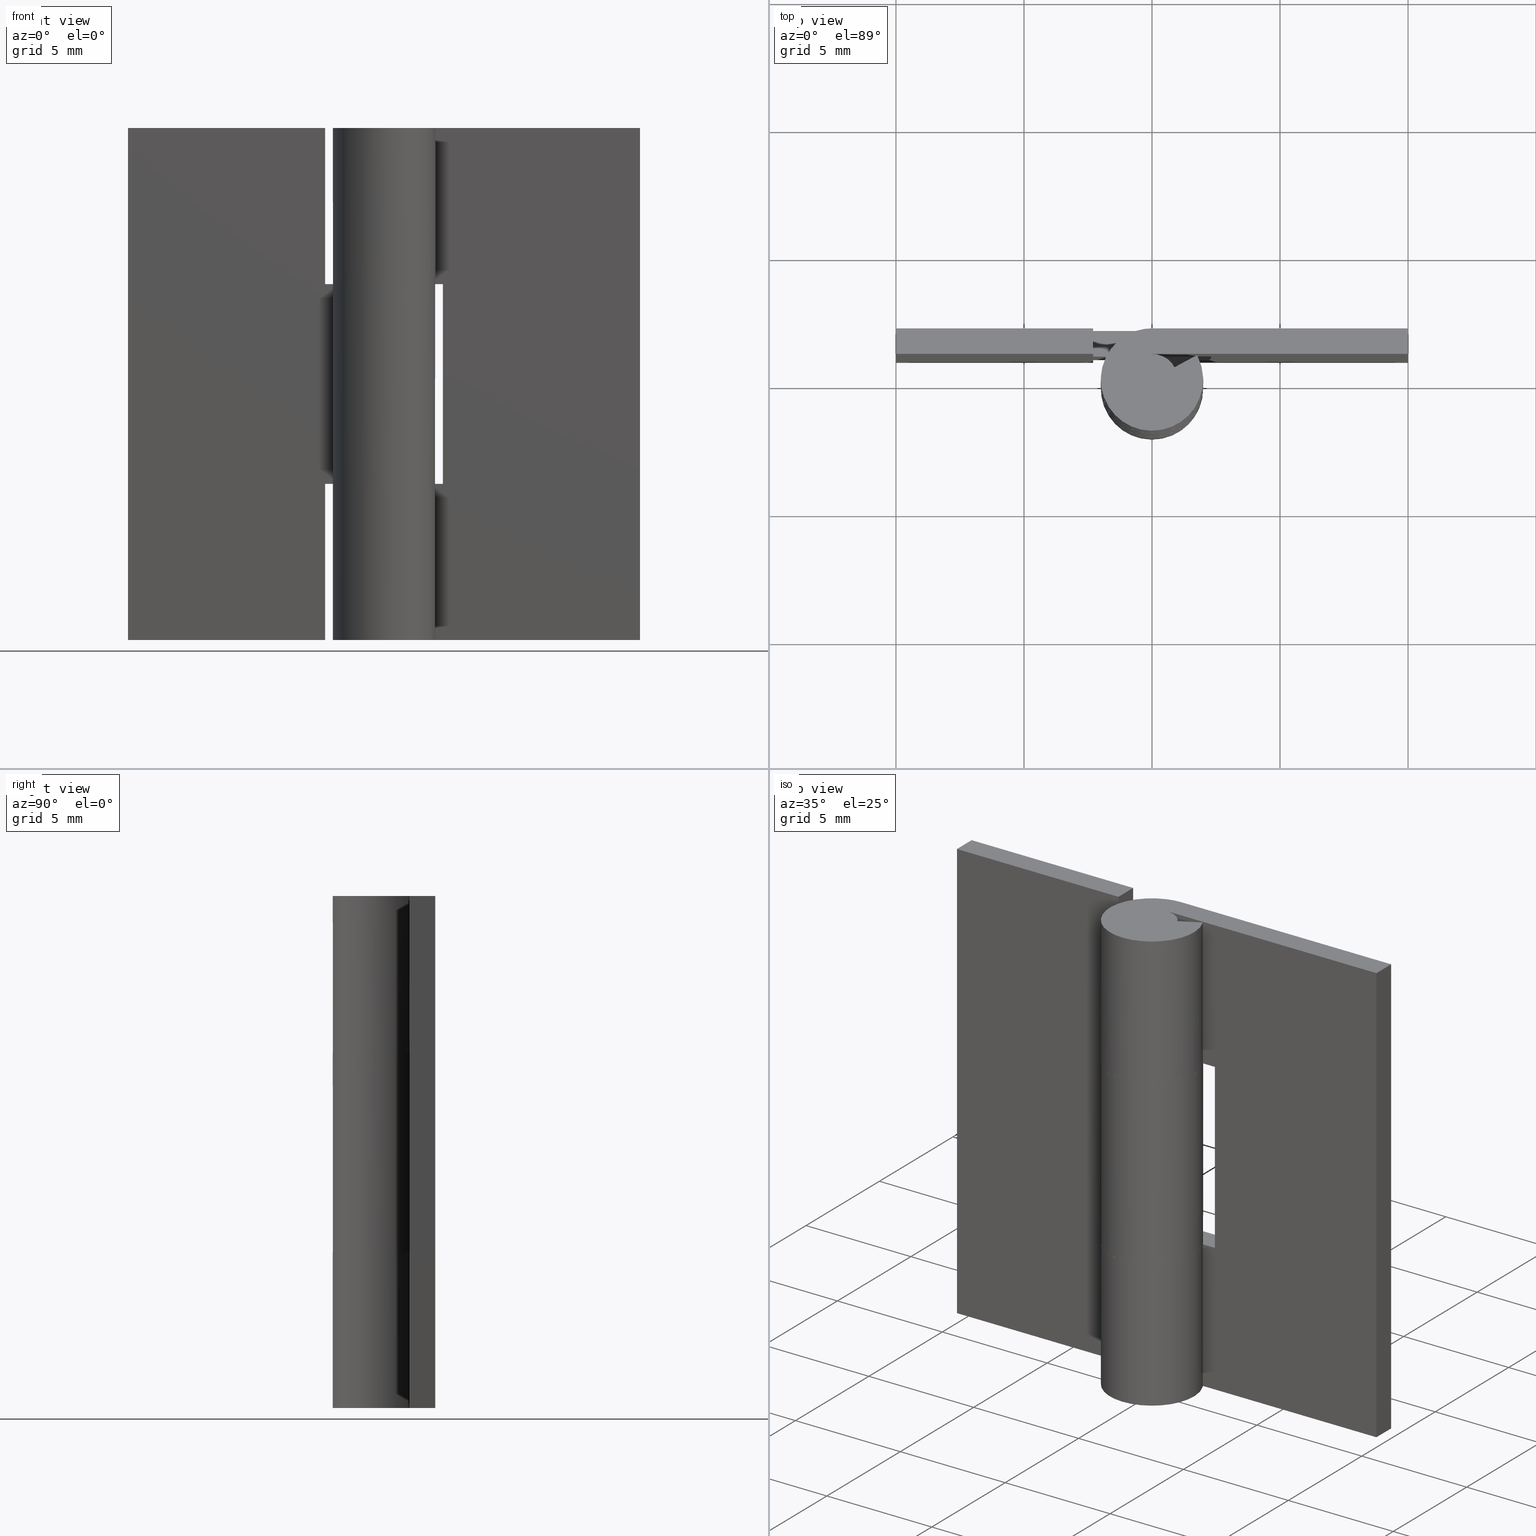
[diagram: canonical four-view strip — front | top / right | iso, engineering-drawing reading convention]
A machine part, canonical four-view strip (front | top / right | iso — engineering-drawing reading convention). The complete STEP part file that produces these views, byte-faithful:
ISO-10303-21;
HEADER;
/****************************************************************
 * Generated by software with PDE/Lib inside                    *
 * PDElib Version 4.4.1-0003, patched  Thursday August 19 11:58 *
 * International Technegroup Inc. (www.iti-oh.com)              *
 ****************************************************************/
FILE_DESCRIPTION((''),'2;1');
FILE_NAME('','2005-04-20T10:57:54',(''),(''),'','CADfix','');
FILE_SCHEMA(('AUTOMOTIVE_DESIGN'));
ENDSEC;
DATA;
#5=APPLICATION_CONTEXT('automotive design');
#6=APPLICATION_PROTOCOL_DEFINITION('Draft International Standard','automotive_design',1998,#5);
#7=PRODUCT_CONTEXT('None',#5,'mechanical');
#8=PRODUCT('hinge piece_B','','None',(#7));
#9=PRODUCT_RELATED_PRODUCT_CATEGORY('part','description',(#8));
#10=PRODUCT_DEFINITION_FORMATION('None','None',#8);
#11=PRODUCT_DEFINITION_CONTEXT('part definition',#5,'design');
#12=PRODUCT_DEFINITION('None','None',#10,#11);
#18=(NAMED_UNIT(*)PLANE_ANGLE_UNIT()SI_UNIT($,.RADIAN.));
#19=DIMENSIONAL_EXPONENTS(0.0,0.0,0.0,0.0,0.0,0.0,0.0);
#20=PLANE_ANGLE_MEASURE_WITH_UNIT(PLANE_ANGLE_MEASURE(0.017453292500000),#18);
#24=(CONVERSION_BASED_UNIT('DEGREE',#20)NAMED_UNIT(#19)PLANE_ANGLE_UNIT());
#28=(NAMED_UNIT(*)SI_UNIT($,.STERADIAN.)SOLID_ANGLE_UNIT());
#32=(LENGTH_UNIT()NAMED_UNIT(*)SI_UNIT(.MILLI.,.METRE.));
#34=UNCERTAINTY_MEASURE_WITH_UNIT(LENGTH_MEASURE(0.001000000000000),#32,'DISTANCE_ACCURACY_VALUE','');
#36=(GEOMETRIC_REPRESENTATION_CONTEXT(3)GLOBAL_UNCERTAINTY_ASSIGNED_CONTEXT((#34))GLOBAL_UNIT_ASSIGNED_CONTEXT((#24,#28,#32))REPRESENTATION_CONTEXT('None','None'));
#37=AXIS2_PLACEMENT_3D('',#38,#39,#40);
#38=CARTESIAN_POINT('',(0.0,0.0,0.0));
#39=DIRECTION('',(0.0,0.0,1.0));
#40=DIRECTION('',(1.0,0.0,0.0));
#41=ADVANCED_BREP_SHAPE_REPRESENTATION('',(#37,#451,#1339),#36);
#42=PRODUCT_DEFINITION_SHAPE('','',#12);
#43=SHAPE_DEFINITION_REPRESENTATION(#42,#41);
#44=CARTESIAN_POINT('',(-2.300003000000000,2.049949998061806,6.404691895589535));
#45=CARTESIAN_POINT('',(-2.300003000000000,2.049949998061806,-0.304695004665881));
#46=CARTESIAN_POINT('',(-2.300003000000000,0.950049975116104,6.404691895589535));
#47=CARTESIAN_POINT('',(-2.300003000000000,0.950049975116104,-0.304695004665881));
#48=B_SPLINE_SURFACE_WITH_KNOTS('',1,1,((#44,#46),(#45,#47)),.UNSPECIFIED.,.F.,.F.,.U.,(2,2),(2,2),(0.0,6.709386900255415),(0.041708334948495,0.958291687403247),.UNSPECIFIED.);
#49=CARTESIAN_POINT('',(-2.300003000000000,1.0,0.0));
#50=VERTEX_POINT('',#49);
#51=CARTESIAN_POINT('',(-2.300003000000000,2.0,0.0));
#52=VERTEX_POINT('',#51);
#53=CARTESIAN_POINT('',(-2.300003000000000,1.0,0.0));
#54=CARTESIAN_POINT('',(-2.300003000000000,2.0,0.0));
#55=QUASI_UNIFORM_CURVE('',1,(#53,#54),.UNSPECIFIED.,.F.,.U.);
#56=EDGE_CURVE('',#50,#52,#55,.T.);
#57=ORIENTED_EDGE('',*,*,#56,.T.);
#58=CARTESIAN_POINT('',(-2.300003000000000,2.0,6.099997000000100));
#59=VERTEX_POINT('',#58);
#60=CARTESIAN_POINT('',(-2.300003000000000,2.0,6.099997000000100));
#61=CARTESIAN_POINT('',(-2.300003000000000,2.0,0.0));
#62=QUASI_UNIFORM_CURVE('',1,(#60,#61),.UNSPECIFIED.,.F.,.U.);
#63=EDGE_CURVE('',#59,#52,#62,.T.);
#64=ORIENTED_EDGE('',*,*,#63,.F.);
#65=CARTESIAN_POINT('',(-2.300003000000000,1.0,6.099997000000100));
#66=VERTEX_POINT('',#65);
#67=CARTESIAN_POINT('',(-2.300003000000000,1.0,6.099997000000100));
#68=CARTESIAN_POINT('',(-2.300003000000000,2.0,6.099997000000100));
#69=QUASI_UNIFORM_CURVE('',1,(#67,#68),.UNSPECIFIED.,.F.,.U.);
#70=EDGE_CURVE('',#66,#59,#69,.T.);
#71=ORIENTED_EDGE('',*,*,#70,.F.);
#72=CARTESIAN_POINT('',(-2.300003000000000,1.0,0.0));
#73=CARTESIAN_POINT('',(-2.300003000000000,1.0,6.099997000000100));
#74=QUASI_UNIFORM_CURVE('',1,(#72,#73),.UNSPECIFIED.,.F.,.U.);
#75=EDGE_CURVE('',#50,#66,#74,.T.);
#76=ORIENTED_EDGE('',*,*,#75,.F.);
#77=EDGE_LOOP('',(#57,#64,#71,#76));
#78=FACE_OUTER_BOUND('',#77,.T.);
#79=ADVANCED_FACE('',(#78),#48,.F.);
#80=CARTESIAN_POINT('',(2.214707569770357,2.199785247145852,6.099997000000100));
#81=CARTESIAN_POINT('',(-2.514784566474506,2.199785247145852,6.099997000000100));
#82=CARTESIAN_POINT('',(2.214707569770357,-2.199490157190181,6.099997000000100));
#83=CARTESIAN_POINT('',(-2.514784566474506,-2.199490157190181,6.099997000000100));
#84=B_SPLINE_SURFACE_WITH_KNOTS('',1,1,((#80,#82),(#81,#83)),.UNSPECIFIED.,.F.,.F.,.U.,(2,2),(2,2),(0.0,4.729492136244863),(0.0,4.399275404336033),.UNSPECIFIED.);
#85=ORIENTED_EDGE('',*,*,#70,.T.);
#86=CARTESIAN_POINT('',(0.0,2.0,6.099997000000100));
#87=VERTEX_POINT('',#86);
#88=CARTESIAN_POINT('',(0.0,2.0,6.099997000000100));
#89=CARTESIAN_POINT('',(-2.300003000000000,2.0,6.099997000000100));
#90=QUASI_UNIFORM_CURVE('',1,(#88,#89),.UNSPECIFIED.,.F.,.U.);
#91=EDGE_CURVE('',#87,#59,#90,.T.);
#92=ORIENTED_EDGE('',*,*,#91,.F.);
#93=CARTESIAN_POINT('',(-1.759971590679805,0.950000000000000,6.099997000000080));
#94=VERTEX_POINT('',#93);
#95=CARTESIAN_POINT('',(0.0,2.0,6.099997000000100));
#96=CARTESIAN_POINT('',(1.523311426391113,2.000000000000000,6.099997000000080));
#97=CARTESIAN_POINT('',(1.928096575312494,0.531454227820452,6.099997000000080));
#98=CARTESIAN_POINT('',(2.332881724233873,-0.937091544359094,6.099997000000080));
#99=CARTESIAN_POINT('',(1.024695076595961,-1.717556403731766,6.099997000000080));
#100=CARTESIAN_POINT('',(-0.283491571041951,-2.498021263104438,6.099997000000080));
#101=CARTESIAN_POINT('',(-1.383518044628767,-1.444256840103794,6.099997000000080));
#102=CARTESIAN_POINT('',(-2.483544518215582,-0.390492417103149,6.099997000000080));
#103=CARTESIAN_POINT('',(-1.759971590679806,0.949999999999997,6.099997000000080));
#111=(BOUNDED_CURVE()B_SPLINE_CURVE(2,(#95,#96,#97,#98,#99,#100,#101,#102,#103),.UNSPECIFIED.,.F.,.U.)B_SPLINE_CURVE_WITH_KNOTS((3,2,2,2,3),(0.0,0.250000000000000,0.500000000000000,0.750000000000000,1.0),.UNSPECIFIED.)CURVE()GEOMETRIC_REPRESENTATION_ITEM()RATIONAL_B_SPLINE_CURVE((1.0,0.795527219493534,1.0,0.795527219493534,1.0,0.795527219493534,1.0,0.795527219493534,1.0))REPRESENTATION_ITEM(''));
#112=EDGE_CURVE('',#87,#94,#111,.T.);
#113=ORIENTED_EDGE('',*,*,#112,.T.);
#114=CARTESIAN_POINT('',(-0.879985795339901,0.475000000000000,6.099997000000080));
#115=VERTEX_POINT('',#114);
#116=CARTESIAN_POINT('',(-0.879985795339901,0.475000000000000,6.099997000000080));
#117=CARTESIAN_POINT('',(-1.759971590679805,0.950000000000000,6.099997000000080));
#118=QUASI_UNIFORM_CURVE('',1,(#116,#117),.UNSPECIFIED.,.F.,.U.);
#119=EDGE_CURVE('',#115,#94,#118,.T.);
#120=ORIENTED_EDGE('',*,*,#119,.F.);
#121=CARTESIAN_POINT('',(0.0,1.0,6.099997000000080));
#122=VERTEX_POINT('',#121);
#123=CARTESIAN_POINT('',(0.0,1.0,6.099997000000080));
#124=CARTESIAN_POINT('',(0.761655713195556,1.0,6.099997000000080));
#125=CARTESIAN_POINT('',(0.964048287656247,0.265727113910226,6.099997000000080));
#126=CARTESIAN_POINT('',(1.166440862116937,-0.468545772179548,6.099997000000080));
#127=CARTESIAN_POINT('',(0.512347538297980,-0.858778201865883,6.099997000000080));
#128=CARTESIAN_POINT('',(-0.141745785520977,-1.249010631552219,6.099997000000080));
#129=CARTESIAN_POINT('',(-0.691759022314384,-0.722128420051896,6.099997000000080));
#130=CARTESIAN_POINT('',(-1.241772259107792,-0.195246208551572,6.099997000000080));
#131=CARTESIAN_POINT('',(-0.879985795339902,0.475000000000000,6.099997000000080));
#139=(BOUNDED_CURVE()B_SPLINE_CURVE(2,(#123,#124,#125,#126,#127,#128,#129,#130,#131),.UNSPECIFIED.,.F.,.U.)B_SPLINE_CURVE_WITH_KNOTS((3,2,2,2,3),(0.0,0.250000000000000,0.500000000000000,0.750000000000000,1.0),.UNSPECIFIED.)CURVE()GEOMETRIC_REPRESENTATION_ITEM()RATIONAL_B_SPLINE_CURVE((1.0,0.795527219493534,1.0,0.795527219493534,1.0,0.795527219493534,1.0,0.795527219493534,1.0))REPRESENTATION_ITEM(''));
#140=EDGE_CURVE('',#122,#115,#139,.T.);
#141=ORIENTED_EDGE('',*,*,#140,.F.);
#142=CARTESIAN_POINT('',(-2.300003000000000,1.0,6.099997000000100));
#143=CARTESIAN_POINT('',(0.0,1.0,6.099997000000080));
#144=QUASI_UNIFORM_CURVE('',1,(#142,#143),.UNSPECIFIED.,.F.,.U.);
#145=EDGE_CURVE('',#66,#122,#144,.T.);
#146=ORIENTED_EDGE('',*,*,#145,.F.);
#147=EDGE_LOOP('',(#85,#92,#113,#120,#141,#146));
#148=FACE_OUTER_BOUND('',#147,.T.);
#149=ADVANCED_FACE('',(#148),#84,.F.);
#150=CARTESIAN_POINT('',(-2.300003000000000,0.950050001938194,13.595308619772130));
#151=CARTESIAN_POINT('',(-2.300003000000000,0.950050001938194,20.304694980148220));
#152=CARTESIAN_POINT('',(-2.300003000000000,2.049950024883896,13.595308619772130));
#153=CARTESIAN_POINT('',(-2.300003000000000,2.049950024883896,20.304694980148220));
#154=B_SPLINE_SURFACE_WITH_KNOTS('',1,1,((#150,#152),(#151,#153)),.UNSPECIFIED.,.F.,.F.,.U.,(2,2),(2,2),(0.0,6.709386360376092),(0.041708334948495,0.958291687403247),.UNSPECIFIED.);
#155=CARTESIAN_POINT('',(-2.300003000000000,1.0,13.900002999999900));
#156=VERTEX_POINT('',#155);
#157=CARTESIAN_POINT('',(-2.300003000000000,2.0,13.900002999999900));
#158=VERTEX_POINT('',#157);
#159=CARTESIAN_POINT('',(-2.300003000000000,1.0,13.900002999999900));
#160=CARTESIAN_POINT('',(-2.300003000000000,2.0,13.900002999999900));
#161=QUASI_UNIFORM_CURVE('',1,(#159,#160),.UNSPECIFIED.,.F.,.U.);
#162=EDGE_CURVE('',#156,#158,#161,.T.);
#163=ORIENTED_EDGE('',*,*,#162,.T.);
#164=CARTESIAN_POINT('',(-2.300003000000000,2.0,20.0));
#165=VERTEX_POINT('',#164);
#166=CARTESIAN_POINT('',(-2.300003000000000,2.0,13.900002999999900));
#167=CARTESIAN_POINT('',(-2.300003000000000,2.0,20.0));
#168=QUASI_UNIFORM_CURVE('',1,(#166,#167),.UNSPECIFIED.,.F.,.U.);
#169=EDGE_CURVE('',#158,#165,#168,.T.);
#170=ORIENTED_EDGE('',*,*,#169,.T.);
#171=CARTESIAN_POINT('',(-2.300003000000000,1.0,20.0));
#172=VERTEX_POINT('',#171);
#173=CARTESIAN_POINT('',(-2.300003000000000,1.0,20.0));
#174=CARTESIAN_POINT('',(-2.300003000000000,2.0,20.0));
#175=QUASI_UNIFORM_CURVE('',1,(#173,#174),.UNSPECIFIED.,.F.,.U.);
#176=EDGE_CURVE('',#172,#165,#175,.T.);
#177=ORIENTED_EDGE('',*,*,#176,.F.);
#178=CARTESIAN_POINT('',(-2.300003000000000,1.0,13.900002999999900));
#179=CARTESIAN_POINT('',(-2.300003000000000,1.0,20.0));
#180=QUASI_UNIFORM_CURVE('',1,(#178,#179),.UNSPECIFIED.,.F.,.U.);
#181=EDGE_CURVE('',#156,#172,#180,.T.);
#182=ORIENTED_EDGE('',*,*,#181,.F.);
#183=EDGE_LOOP('',(#163,#170,#177,#182));
#184=FACE_OUTER_BOUND('',#183,.T.);
#185=ADVANCED_FACE('',(#184),#154,.F.);
#186=CARTESIAN_POINT('',(2.214707563119375,-2.199489972669553,13.900002999999900));
#187=CARTESIAN_POINT('',(-2.514784566158096,-2.199489972669553,13.900002999999900));
#188=CARTESIAN_POINT('',(2.214707563119375,2.199785350751693,13.900002999999900));
#189=CARTESIAN_POINT('',(-2.514784566158096,2.199785350751693,13.900002999999900));
#190=B_SPLINE_SURFACE_WITH_KNOTS('',1,1,((#186,#188),(#187,#189)),.UNSPECIFIED.,.F.,.F.,.U.,(2,2),(2,2),(0.0,4.729492129277471),(0.0,4.399275323421245),.UNSPECIFIED.);
#191=CARTESIAN_POINT('',(-0.879985795339901,0.475000000000000,13.900002999999939));
#192=VERTEX_POINT('',#191);
#193=CARTESIAN_POINT('',(0.0,1.0,13.900002999999939));
#194=VERTEX_POINT('',#193);
#195=CARTESIAN_POINT('',(-0.879985795339902,0.475000000000001,13.900002999999939));
#196=CARTESIAN_POINT('',(-1.241772259107792,-0.195246208551571,13.900002999999941));
#197=CARTESIAN_POINT('',(-0.691759022314385,-0.722128420051895,13.900002999999939));
#198=CARTESIAN_POINT('',(-0.141745785520978,-1.249010631552219,13.900002999999941));
#199=CARTESIAN_POINT('',(0.512347538297979,-0.858778201865884,13.900002999999939));
#200=CARTESIAN_POINT('',(1.166440862116937,-0.468545772179549,13.900002999999941));
#201=CARTESIAN_POINT('',(0.964048287656247,0.265727113910226,13.900002999999939));
#202=CARTESIAN_POINT('',(0.761655713195557,1.0,13.900002999999941));
#203=CARTESIAN_POINT('',(0.0,1.0,13.900002999999939));
#211=(BOUNDED_CURVE()B_SPLINE_CURVE(2,(#195,#196,#197,#198,#199,#200,#201,#202,#203),.UNSPECIFIED.,.F.,.U.)B_SPLINE_CURVE_WITH_KNOTS((3,2,2,2,3),(0.0,0.250000000000000,0.500000000000000,0.750000000000000,1.0),.UNSPECIFIED.)CURVE()GEOMETRIC_REPRESENTATION_ITEM()RATIONAL_B_SPLINE_CURVE((1.0,0.795527219493534,1.0,0.795527219493534,1.0,0.795527219493534,1.0,0.795527219493534,1.0))REPRESENTATION_ITEM(''));
#212=EDGE_CURVE('',#192,#194,#211,.T.);
#213=ORIENTED_EDGE('',*,*,#212,.F.);
#214=CARTESIAN_POINT('',(-1.759971590679805,0.950000000000000,13.900002999999939));
#215=VERTEX_POINT('',#214);
#216=CARTESIAN_POINT('',(-1.759971590679805,0.950000000000000,13.900002999999939));
#217=CARTESIAN_POINT('',(-0.879985795339901,0.475000000000000,13.900002999999939));
#218=QUASI_UNIFORM_CURVE('',1,(#216,#217),.UNSPECIFIED.,.F.,.U.);
#219=EDGE_CURVE('',#215,#192,#218,.T.);
#220=ORIENTED_EDGE('',*,*,#219,.F.);
#221=CARTESIAN_POINT('',(0.0,2.0,13.900002999999900));
#222=VERTEX_POINT('',#221);
#223=CARTESIAN_POINT('',(-1.759971590679804,0.950000000000000,13.900002999999939));
#224=CARTESIAN_POINT('',(-2.483544518215584,-0.390492417103144,13.900002999999939));
#225=CARTESIAN_POINT('',(-1.383518044628769,-1.444256840103792,13.900002999999939));
#226=CARTESIAN_POINT('',(-0.283491571041955,-2.498021263104437,13.900002999999939));
#227=CARTESIAN_POINT('',(1.024695076595959,-1.717556403731767,13.900002999999939));
#228=CARTESIAN_POINT('',(2.332881724233873,-0.937091544359097,13.900002999999939));
#229=CARTESIAN_POINT('',(1.928096575312494,0.531454227820451,13.900002999999939));
#230=CARTESIAN_POINT('',(1.523311426391115,2.000000000000000,13.900002999999939));
#231=CARTESIAN_POINT('',(0.0,2.0,13.900002999999900));
#239=(BOUNDED_CURVE()B_SPLINE_CURVE(2,(#223,#224,#225,#226,#227,#228,#229,#230,#231),.UNSPECIFIED.,.F.,.U.)B_SPLINE_CURVE_WITH_KNOTS((3,2,2,2,3),(0.0,0.250000000000000,0.500000000000000,0.750000000000000,1.0),.UNSPECIFIED.)CURVE()GEOMETRIC_REPRESENTATION_ITEM()RATIONAL_B_SPLINE_CURVE((1.0,0.795527219493534,1.0,0.795527219493534,1.0,0.795527219493534,1.0,0.795527219493534,1.0))REPRESENTATION_ITEM(''));
#240=EDGE_CURVE('',#215,#222,#239,.T.);
#241=ORIENTED_EDGE('',*,*,#240,.T.);
#242=CARTESIAN_POINT('',(0.0,2.0,13.900002999999900));
#243=CARTESIAN_POINT('',(-2.300003000000000,2.0,13.900002999999900));
#244=QUASI_UNIFORM_CURVE('',1,(#242,#243),.UNSPECIFIED.,.F.,.U.);
#245=EDGE_CURVE('',#222,#158,#244,.T.);
#246=ORIENTED_EDGE('',*,*,#245,.T.);
#247=ORIENTED_EDGE('',*,*,#162,.F.);
#248=CARTESIAN_POINT('',(0.0,1.0,13.900002999999939));
#249=CARTESIAN_POINT('',(-2.300003000000000,1.0,13.900002999999900));
#250=QUASI_UNIFORM_CURVE('',1,(#248,#249),.UNSPECIFIED.,.F.,.U.);
#251=EDGE_CURVE('',#194,#156,#250,.T.);
#252=ORIENTED_EDGE('',*,*,#251,.F.);
#253=EDGE_LOOP('',(#213,#220,#241,#246,#247,#252));
#254=FACE_OUTER_BOUND('',#253,.T.);
#255=ADVANCED_FACE('',(#254),#190,.F.);
#256=CARTESIAN_POINT('',(-10.384614835225911,0.950050001938194,0.0));
#257=CARTESIAN_POINT('',(-1.915387958244075,0.950050001938194,0.0));
#258=CARTESIAN_POINT('',(-10.384614835225911,2.049950024883896,0.0));
#259=CARTESIAN_POINT('',(-1.915387958244075,2.049950024883896,0.0));
#260=B_SPLINE_SURFACE_WITH_KNOTS('',1,1,((#256,#258),(#257,#259)),.UNSPECIFIED.,.F.,.F.,.U.,(2,2),(2,2),(0.0,8.469226876981837),(0.041708334948495,0.958291687403247),.UNSPECIFIED.);
#261=ORIENTED_EDGE('',*,*,#56,.F.);
#262=CARTESIAN_POINT('',(-10.0,1.0,0.0));
#263=VERTEX_POINT('',#262);
#264=CARTESIAN_POINT('',(-10.0,1.0,0.0));
#265=CARTESIAN_POINT('',(-2.300003000000000,1.0,0.0));
#266=QUASI_UNIFORM_CURVE('',1,(#264,#265),.UNSPECIFIED.,.F.,.U.);
#267=EDGE_CURVE('',#263,#50,#266,.T.);
#268=ORIENTED_EDGE('',*,*,#267,.F.);
#269=CARTESIAN_POINT('',(-10.0,2.0,0.0));
#270=VERTEX_POINT('',#269);
#271=CARTESIAN_POINT('',(-10.0,2.0,0.0));
#272=CARTESIAN_POINT('',(-10.0,1.0,0.0));
#273=QUASI_UNIFORM_CURVE('',1,(#271,#272),.UNSPECIFIED.,.F.,.U.);
#274=EDGE_CURVE('',#270,#263,#273,.T.);
#275=ORIENTED_EDGE('',*,*,#274,.F.);
#276=CARTESIAN_POINT('',(-2.300003000000000,2.0,0.0));
#277=CARTESIAN_POINT('',(-10.0,2.0,0.0));
#278=QUASI_UNIFORM_CURVE('',1,(#276,#277),.UNSPECIFIED.,.F.,.U.);
#279=EDGE_CURVE('',#52,#270,#278,.T.);
#280=ORIENTED_EDGE('',*,*,#279,.F.);
#281=EDGE_LOOP('',(#261,#268,#275,#280));
#282=FACE_OUTER_BOUND('',#281,.T.);
#283=ADVANCED_FACE('',(#282),#260,.F.);
#284=CARTESIAN_POINT('',(-10.384614835225911,0.950050001938194,20.0));
#285=CARTESIAN_POINT('',(-1.915387958244075,0.950050001938194,20.0));
#286=CARTESIAN_POINT('',(-10.384614835225911,2.049950024883896,20.0));
#287=CARTESIAN_POINT('',(-1.915387958244075,2.049950024883896,20.0));
#288=B_SPLINE_SURFACE_WITH_KNOTS('',1,1,((#284,#286),(#285,#287)),.UNSPECIFIED.,.F.,.F.,.U.,(2,2),(2,2),(0.0,8.469226876981837),(0.041708334948495,0.958291687403247),.UNSPECIFIED.);
#289=CARTESIAN_POINT('',(-10.0,1.0,20.0));
#290=VERTEX_POINT('',#289);
#291=CARTESIAN_POINT('',(-10.0,1.0,20.0));
#292=CARTESIAN_POINT('',(-2.300003000000000,1.0,20.0));
#293=QUASI_UNIFORM_CURVE('',1,(#291,#292),.UNSPECIFIED.,.F.,.U.);
#294=EDGE_CURVE('',#290,#172,#293,.T.);
#295=ORIENTED_EDGE('',*,*,#294,.T.);
#296=ORIENTED_EDGE('',*,*,#176,.T.);
#297=CARTESIAN_POINT('',(-10.0,2.0,20.0));
#298=VERTEX_POINT('',#297);
#299=CARTESIAN_POINT('',(-2.300003000000000,2.0,20.0));
#300=CARTESIAN_POINT('',(-10.0,2.0,20.0));
#301=QUASI_UNIFORM_CURVE('',1,(#299,#300),.UNSPECIFIED.,.F.,.U.);
#302=EDGE_CURVE('',#165,#298,#301,.T.);
#303=ORIENTED_EDGE('',*,*,#302,.T.);
#304=CARTESIAN_POINT('',(-10.0,2.0,20.0));
#305=CARTESIAN_POINT('',(-10.0,1.0,20.0));
#306=QUASI_UNIFORM_CURVE('',1,(#304,#305),.UNSPECIFIED.,.F.,.U.);
#307=EDGE_CURVE('',#298,#290,#306,.T.);
#308=ORIENTED_EDGE('',*,*,#307,.T.);
#309=EDGE_LOOP('',(#295,#296,#303,#308));
#310=FACE_OUTER_BOUND('',#309,.T.);
#311=ADVANCED_FACE('',(#310),#288,.T.);
#312=CARTESIAN_POINT('',(-1.723258320883051,1.015076725921408,14.095003149999940));
#313=CARTESIAN_POINT('',(-1.723258320883051,1.015076725921408,5.900121846250083));
#314=CARTESIAN_POINT('',(-2.969344769301742,-1.100358281051034,14.095003149999940));
#315=CARTESIAN_POINT('',(-2.969344769301742,-1.100358281051034,5.900121846250083));
#316=CARTESIAN_POINT('',(-0.645632757753657,-1.892923226682848,14.095003149999940));
#317=CARTESIAN_POINT('',(-0.645632757753657,-1.892923226682848,5.900121846250083));
#318=CARTESIAN_POINT('',(1.678079253794428,-2.685488172314661,14.095003149999940));
#319=CARTESIAN_POINT('',(1.678079253794428,-2.685488172314661,5.900121846250083));
#320=CARTESIAN_POINT('',(1.984374898665018,-0.249512046899941,14.095003149999940));
#321=CARTESIAN_POINT('',(1.984374898665018,-0.249512046899941,5.900121846250083));
#322=CARTESIAN_POINT('',(2.290670543535608,2.186464078514781,14.095003149999940));
#323=CARTESIAN_POINT('',(2.290670543535608,2.186464078514781,5.900121846250083));
#324=CARTESIAN_POINT('',(-0.156918191455691,1.993834667466256,14.095003149999940));
#325=CARTESIAN_POINT('',(-0.156918191455691,1.993834667466256,5.900121846250083));
#333=(BOUNDED_SURFACE()B_SPLINE_SURFACE(1,2,((#312,#314,#316,#318,#320,#322,#324),(#313,#315,#317,#319,#321,#323,#325)),.UNSPECIFIED.,.F.,.F.,.U.)B_SPLINE_SURFACE_WITH_KNOTS((2,2),(3,2,2,3),(0.0,8.194881303749856),(0.0,3.801531476131832,7.603062952263665,11.404594428395500),.UNSPECIFIED.)GEOMETRIC_REPRESENTATION_ITEM()RATIONAL_B_SPLINE_SURFACE(((1.0,0.631578351302498,1.0,0.631578351302498,1.0,0.631578351302498,1.0),(1.0,0.631578351302498,1.0,0.631578351302498,1.0,0.631578351302498,1.0)))REPRESENTATION_ITEM('')SURFACE());
#334=CARTESIAN_POINT('',(-1.759971590679805,0.950000000000000,13.900002999999939));
#335=CARTESIAN_POINT('',(-1.759971590679805,0.950000000000000,6.099997000000080));
#336=QUASI_UNIFORM_CURVE('',1,(#334,#335),.UNSPECIFIED.,.F.,.U.);
#337=EDGE_CURVE('',#215,#94,#336,.T.);
#338=ORIENTED_EDGE('',*,*,#337,.T.);
#339=ORIENTED_EDGE('',*,*,#112,.F.);
#340=CARTESIAN_POINT('',(0.0,2.0,13.900002999999900));
#341=CARTESIAN_POINT('',(0.0,2.0,6.099997000000100));
#342=QUASI_UNIFORM_CURVE('',1,(#340,#341),.UNSPECIFIED.,.F.,.U.);
#343=EDGE_CURVE('',#222,#87,#342,.T.);
#344=ORIENTED_EDGE('',*,*,#343,.F.);
#345=ORIENTED_EDGE('',*,*,#240,.F.);
#346=EDGE_LOOP('',(#338,#339,#344,#345));
#347=FACE_OUTER_BOUND('',#346,.T.);
#348=ADVANCED_FACE('',(#347),#333,.T.);
#349=CARTESIAN_POINT('',(-1.803926895972803,0.973726257997279,5.710386715418012));
#350=CARTESIAN_POINT('',(-0.836030482179216,0.451273737755891,5.710386715418012));
#351=CARTESIAN_POINT('',(-1.803926895972803,0.973726257997279,14.289613493794469));
#352=CARTESIAN_POINT('',(-0.836030482179216,0.451273737755891,14.289613493794469));
#353=B_SPLINE_SURFACE_WITH_KNOTS('',1,1,((#349,#351),(#350,#352)),.UNSPECIFIED.,.F.,.F.,.U.,(2,2),(2,2),(0.041708319303021,0.958291688147560),(0.0,8.579226778376462),.UNSPECIFIED.);
#354=CARTESIAN_POINT('',(-0.879985795339901,0.475000000000000,13.900002999999939));
#355=CARTESIAN_POINT('',(-0.879985795339901,0.475000000000000,6.099997000000080));
#356=QUASI_UNIFORM_CURVE('',1,(#354,#355),.UNSPECIFIED.,.F.,.U.);
#357=EDGE_CURVE('',#192,#115,#356,.T.);
#358=ORIENTED_EDGE('',*,*,#357,.T.);
#359=ORIENTED_EDGE('',*,*,#119,.T.);
#360=ORIENTED_EDGE('',*,*,#337,.F.);
#361=ORIENTED_EDGE('',*,*,#219,.T.);
#362=EDGE_LOOP('',(#358,#359,#360,#361));
#363=FACE_OUTER_BOUND('',#362,.T.);
#364=ADVANCED_FACE('',(#363),#353,.F.);
#365=CARTESIAN_POINT('',(-0.861629160441525,0.507538362960704,14.095003149999940));
#366=CARTESIAN_POINT('',(-0.861629160441525,0.507538362960704,5.900121846250083));
#367=CARTESIAN_POINT('',(-1.484672384650871,-0.550179140525517,14.095003149999940));
#368=CARTESIAN_POINT('',(-1.484672384650871,-0.550179140525517,5.900121846250083));
#369=CARTESIAN_POINT('',(-0.322816378876829,-0.946461613341424,14.095003149999940));
#370=CARTESIAN_POINT('',(-0.322816378876829,-0.946461613341424,5.900121846250083));
#371=CARTESIAN_POINT('',(0.839039626897214,-1.342744086157331,14.095003149999940));
#372=CARTESIAN_POINT('',(0.839039626897214,-1.342744086157331,5.900121846250083));
#373=CARTESIAN_POINT('',(0.992187449332509,-0.124756023449970,14.095003149999940));
#374=CARTESIAN_POINT('',(0.992187449332509,-0.124756023449970,5.900121846250083));
#375=CARTESIAN_POINT('',(1.145335271767804,1.093232039257390,14.095003149999940));
#376=CARTESIAN_POINT('',(1.145335271767804,1.093232039257390,5.900121846250083));
#377=CARTESIAN_POINT('',(-0.078459095727845,0.996917333733128,14.095003149999940));
#378=CARTESIAN_POINT('',(-0.078459095727845,0.996917333733128,5.900121846250083));
#386=(BOUNDED_SURFACE()B_SPLINE_SURFACE(1,2,((#365,#367,#369,#371,#373,#375,#377),(#366,#368,#370,#372,#374,#376,#378)),.UNSPECIFIED.,.F.,.F.,.U.)B_SPLINE_SURFACE_WITH_KNOTS((2,2),(3,2,2,3),(0.0,8.194881303749856),(0.0,1.0,2.0,3.0),.UNSPECIFIED.)GEOMETRIC_REPRESENTATION_ITEM()RATIONAL_B_SPLINE_SURFACE(((1.0,0.631578351302498,1.0,0.631578351302498,1.0,0.631578351302498,1.0),(1.0,0.631578351302498,1.0,0.631578351302498,1.0,0.631578351302498,1.0)))REPRESENTATION_ITEM('')SURFACE());
#387=CARTESIAN_POINT('',(0.0,1.0,13.900002999999939));
#388=CARTESIAN_POINT('',(0.0,1.0,6.099997000000080));
#389=QUASI_UNIFORM_CURVE('',1,(#387,#388),.UNSPECIFIED.,.F.,.U.);
#390=EDGE_CURVE('',#194,#122,#389,.T.);
#391=ORIENTED_EDGE('',*,*,#390,.T.);
#392=ORIENTED_EDGE('',*,*,#140,.T.);
#393=ORIENTED_EDGE('',*,*,#357,.F.);
#394=ORIENTED_EDGE('',*,*,#212,.T.);
#395=EDGE_LOOP('',(#391,#392,#393,#394));
#396=FACE_OUTER_BOUND('',#395,.T.);
#397=ADVANCED_FACE('',(#396),#386,.F.);
#398=CARTESIAN_POINT('',(-10.499499980618060,1.0,-0.998999961236120));
#399=CARTESIAN_POINT('',(-10.499499980618060,1.0,20.999000497677919));
#400=CARTESIAN_POINT('',(0.499500248838961,1.0,-0.998999961236120));
#401=CARTESIAN_POINT('',(0.499500248838961,1.0,20.999000497677919));
#402=B_SPLINE_SURFACE_WITH_KNOTS('',1,1,((#398,#400),(#399,#401)),.UNSPECIFIED.,.F.,.F.,.U.,(2,2),(2,2),(0.0,21.998000458914039),(0.0,10.999000229457019),.UNSPECIFIED.);
#403=ORIENTED_EDGE('',*,*,#75,.T.);
#404=ORIENTED_EDGE('',*,*,#145,.T.);
#405=ORIENTED_EDGE('',*,*,#390,.F.);
#406=ORIENTED_EDGE('',*,*,#251,.T.);
#407=ORIENTED_EDGE('',*,*,#181,.T.);
#408=ORIENTED_EDGE('',*,*,#294,.F.);
#409=CARTESIAN_POINT('',(-10.0,1.0,20.0));
#410=CARTESIAN_POINT('',(-10.0,1.0,0.0));
#411=QUASI_UNIFORM_CURVE('',1,(#409,#410),.UNSPECIFIED.,.F.,.U.);
#412=EDGE_CURVE('',#290,#263,#411,.T.);
#413=ORIENTED_EDGE('',*,*,#412,.T.);
#414=ORIENTED_EDGE('',*,*,#267,.T.);
#415=EDGE_LOOP('',(#403,#404,#405,#406,#407,#408,#413,#414));
#416=FACE_OUTER_BOUND('',#415,.T.);
#417=ADVANCED_FACE('',(#416),#402,.F.);
#418=CARTESIAN_POINT('',(-10.0,0.950050001938194,20.998999961236120));
#419=CARTESIAN_POINT('',(-10.0,0.950050001938194,-0.999000497677922));
#420=CARTESIAN_POINT('',(-10.0,2.049950024883896,20.998999961236120));
#421=CARTESIAN_POINT('',(-10.0,2.049950024883896,-0.999000497677922));
#422=B_SPLINE_SURFACE_WITH_KNOTS('',1,1,((#418,#420),(#419,#421)),.UNSPECIFIED.,.F.,.F.,.U.,(2,2),(2,2),(0.0,21.998000458914039),(0.041708334948495,0.958291687403247),.UNSPECIFIED.);
#423=ORIENTED_EDGE('',*,*,#274,.T.);
#424=ORIENTED_EDGE('',*,*,#412,.F.);
#425=ORIENTED_EDGE('',*,*,#307,.F.);
#426=CARTESIAN_POINT('',(-10.0,2.0,20.0));
#427=CARTESIAN_POINT('',(-10.0,2.0,0.0));
#428=QUASI_UNIFORM_CURVE('',1,(#426,#427),.UNSPECIFIED.,.F.,.U.);
#429=EDGE_CURVE('',#298,#270,#428,.T.);
#430=ORIENTED_EDGE('',*,*,#429,.T.);
#431=EDGE_LOOP('',(#423,#424,#425,#430));
#432=FACE_OUTER_BOUND('',#431,.T.);
#433=ADVANCED_FACE('',(#432),#422,.F.);
#434=CARTESIAN_POINT('',(-10.499499980618060,2.0,20.998999961236120));
#435=CARTESIAN_POINT('',(-10.499499980618060,2.0,-0.999000497677922));
#436=CARTESIAN_POINT('',(0.499500248838961,2.0,20.998999961236120));
#437=CARTESIAN_POINT('',(0.499500248838961,2.0,-0.999000497677922));
#438=B_SPLINE_SURFACE_WITH_KNOTS('',1,1,((#434,#436),(#435,#437)),.UNSPECIFIED.,.F.,.F.,.U.,(2,2),(2,2),(0.0,21.998000458914039),(0.0,10.999000229457019),.UNSPECIFIED.);
#439=ORIENTED_EDGE('',*,*,#343,.T.);
#440=ORIENTED_EDGE('',*,*,#91,.T.);
#441=ORIENTED_EDGE('',*,*,#63,.T.);
#442=ORIENTED_EDGE('',*,*,#279,.T.);
#443=ORIENTED_EDGE('',*,*,#429,.F.);
#444=ORIENTED_EDGE('',*,*,#302,.F.);
#445=ORIENTED_EDGE('',*,*,#169,.F.);
#446=ORIENTED_EDGE('',*,*,#245,.F.);
#447=EDGE_LOOP('',(#439,#440,#441,#442,#443,#444,#445,#446));
#448=FACE_OUTER_BOUND('',#447,.T.);
#449=ADVANCED_FACE('',(#448),#438,.F.);
#450=CLOSED_SHELL('',(#79,#149,#185,#255,#283,#311,#348,#364,#397,#417,#433,#449));
#451=MANIFOLD_SOLID_BREP('hinge piece_B',#450);
#452=APPLICATION_CONTEXT('automotive design');
#453=APPLICATION_PROTOCOL_DEFINITION('Draft International Standard','automotive_design',1998,#452);
#454=PRODUCT_CONTEXT('None',#452,'mechanical');
#455=PRODUCT('hinge piece_A','','None',(#454));
#456=PRODUCT_RELATED_PRODUCT_CATEGORY('part','description',(#455));
#457=PRODUCT_DEFINITION_FORMATION('None','None',#455);
#458=PRODUCT_DEFINITION_CONTEXT('part definition',#452,'design');
#459=PRODUCT_DEFINITION('None','None',#457,#458);
#465=(NAMED_UNIT(*)PLANE_ANGLE_UNIT()SI_UNIT($,.RADIAN.));
#466=DIMENSIONAL_EXPONENTS(0.0,0.0,0.0,0.0,0.0,0.0,0.0);
#467=PLANE_ANGLE_MEASURE_WITH_UNIT(PLANE_ANGLE_MEASURE(0.017453292500000),#465);
#471=(CONVERSION_BASED_UNIT('DEGREE',#467)NAMED_UNIT(#466)PLANE_ANGLE_UNIT());
#475=(NAMED_UNIT(*)SI_UNIT($,.STERADIAN.)SOLID_ANGLE_UNIT());
#479=(LENGTH_UNIT()NAMED_UNIT(*)SI_UNIT(.MILLI.,.METRE.));
#481=UNCERTAINTY_MEASURE_WITH_UNIT(LENGTH_MEASURE(0.001000000000000),#479,'DISTANCE_ACCURACY_VALUE','');
#483=(GEOMETRIC_REPRESENTATION_CONTEXT(3)GLOBAL_UNCERTAINTY_ASSIGNED_CONTEXT((#481))GLOBAL_UNIT_ASSIGNED_CONTEXT((#471,#475,#479))REPRESENTATION_CONTEXT('None','None'));
#484=AXIS2_PLACEMENT_3D('',#485,#486,#487);
#485=CARTESIAN_POINT('',(0.0,0.0,0.0));
#486=DIRECTION('',(0.0,0.0,1.0));
#487=DIRECTION('',(1.0,0.0,0.0));
#488=ADVANCED_BREP_SHAPE_REPRESENTATION('',(#484,#1048,#1355),#483);
#489=PRODUCT_DEFINITION_SHAPE('','',#459);
#490=SHAPE_DEFINITION_REPRESENTATION(#489,#488);
#491=CARTESIAN_POINT('',(-2.214707563119375,-2.199489972669553,6.099997000000000));
#492=CARTESIAN_POINT('',(2.514784566158096,-2.199489972669553,6.099997000000000));
#493=CARTESIAN_POINT('',(-2.214707563119375,2.199785350751693,6.099997000000000));
#494=CARTESIAN_POINT('',(2.514784566158096,2.199785350751693,6.099997000000000));
#495=B_SPLINE_SURFACE_WITH_KNOTS('',1,1,((#491,#493),(#492,#494)),.UNSPECIFIED.,.F.,.F.,.U.,(2,2),(2,2),(0.0,4.729492129277471),(0.0,4.399275323421245),.UNSPECIFIED.);
#496=CARTESIAN_POINT('',(1.759971590679805,0.950000000000000,6.099997000000000));
#497=VERTEX_POINT('',#496);
#498=CARTESIAN_POINT('',(0.0,2.0,6.099997000000000));
#499=VERTEX_POINT('',#498);
#500=CARTESIAN_POINT('',(1.759971590679804,0.950000000000000,6.099997000000000));
#501=CARTESIAN_POINT('',(2.483544518215584,-0.390492417103144,6.099996999999999));
#502=CARTESIAN_POINT('',(1.383518044628769,-1.444256840103792,6.099997000000000));
#503=CARTESIAN_POINT('',(0.283491571041955,-2.498021263104437,6.099996999999999));
#504=CARTESIAN_POINT('',(-1.024695076595959,-1.717556403731767,6.099997000000000));
#505=CARTESIAN_POINT('',(-2.332881724233873,-0.937091544359097,6.099996999999999));
#506=CARTESIAN_POINT('',(-1.928096575312494,0.531454227820451,6.099997000000000));
#507=CARTESIAN_POINT('',(-1.523311426391115,2.000000000000000,6.099996999999999));
#508=CARTESIAN_POINT('',(0.0,2.0,6.099997000000000));
#516=(BOUNDED_CURVE()B_SPLINE_CURVE(2,(#500,#501,#502,#503,#504,#505,#506,#507,#508),.UNSPECIFIED.,.F.,.U.)B_SPLINE_CURVE_WITH_KNOTS((3,2,2,2,3),(0.0,0.250000000000000,0.500000000000000,0.750000000000000,1.0),.UNSPECIFIED.)CURVE()GEOMETRIC_REPRESENTATION_ITEM()RATIONAL_B_SPLINE_CURVE((1.0,0.795527219493534,1.0,0.795527219493534,1.0,0.795527219493534,1.0,0.795527219493534,1.0))REPRESENTATION_ITEM(''));
#517=EDGE_CURVE('',#497,#499,#516,.T.);
#518=ORIENTED_EDGE('',*,*,#517,.F.);
#519=CARTESIAN_POINT('',(0.879985795339901,0.475000000000000,6.099997000000000));
#520=VERTEX_POINT('',#519);
#521=CARTESIAN_POINT('',(1.759971590679805,0.950000000000000,6.099997000000000));
#522=CARTESIAN_POINT('',(0.879985795339901,0.475000000000000,6.099997000000000));
#523=QUASI_UNIFORM_CURVE('',1,(#521,#522),.UNSPECIFIED.,.F.,.U.);
#524=EDGE_CURVE('',#497,#520,#523,.T.);
#525=ORIENTED_EDGE('',*,*,#524,.T.);
#526=CARTESIAN_POINT('',(-1.836937E-016,1.0,6.099997000000000));
#527=VERTEX_POINT('',#526);
#528=CARTESIAN_POINT('',(0.879985795339902,0.475000000000001,6.099997000000000));
#529=CARTESIAN_POINT('',(1.241772259107792,-0.195246208551571,6.099997000000000));
#530=CARTESIAN_POINT('',(0.691759022314385,-0.722128420051895,6.099997000000000));
#531=CARTESIAN_POINT('',(0.141745785520978,-1.249010631552219,6.099997000000000));
#532=CARTESIAN_POINT('',(-0.512347538297979,-0.858778201865884,6.099997000000000));
#533=CARTESIAN_POINT('',(-1.166440862116937,-0.468545772179549,6.099997000000000));
#534=CARTESIAN_POINT('',(-0.964048287656247,0.265727113910226,6.099997000000000));
#535=CARTESIAN_POINT('',(-0.761655713195557,1.0,6.099997000000000));
#536=CARTESIAN_POINT('',(0.0,1.0,6.099997000000000));
#544=(BOUNDED_CURVE()B_SPLINE_CURVE(2,(#528,#529,#530,#531,#532,#533,#534,#535,#536),.UNSPECIFIED.,.F.,.U.)B_SPLINE_CURVE_WITH_KNOTS((3,2,2,2,3),(0.0,0.250000000000000,0.500000000000000,0.750000000000000,1.0),.UNSPECIFIED.)CURVE()GEOMETRIC_REPRESENTATION_ITEM()RATIONAL_B_SPLINE_CURVE((1.0,0.795527219493534,1.0,0.795527219493534,1.0,0.795527219493534,1.0,0.795527219493534,1.0))REPRESENTATION_ITEM(''));
#545=EDGE_CURVE('',#520,#527,#544,.T.);
#546=ORIENTED_EDGE('',*,*,#545,.T.);
#547=CARTESIAN_POINT('',(2.300003000000000,1.0,6.099997000000080));
#548=VERTEX_POINT('',#547);
#549=CARTESIAN_POINT('',(-1.836937E-016,1.0,6.099997000000000));
#550=CARTESIAN_POINT('',(2.300003000000000,1.0,6.099997000000080));
#551=QUASI_UNIFORM_CURVE('',1,(#549,#550),.UNSPECIFIED.,.F.,.U.);
#552=EDGE_CURVE('',#527,#548,#551,.T.);
#553=ORIENTED_EDGE('',*,*,#552,.T.);
#554=CARTESIAN_POINT('',(2.300003000000000,2.0,6.099997000000000));
#555=VERTEX_POINT('',#554);
#556=CARTESIAN_POINT('',(2.300003000000000,1.0,6.099997000000080));
#557=CARTESIAN_POINT('',(2.300003000000000,2.0,6.099997000000000));
#558=QUASI_UNIFORM_CURVE('',1,(#556,#557),.UNSPECIFIED.,.F.,.U.);
#559=EDGE_CURVE('',#548,#555,#558,.T.);
#560=ORIENTED_EDGE('',*,*,#559,.T.);
#561=CARTESIAN_POINT('',(0.0,2.0,6.099997000000000));
#562=CARTESIAN_POINT('',(2.300003000000000,2.0,6.099997000000000));
#563=QUASI_UNIFORM_CURVE('',1,(#561,#562),.UNSPECIFIED.,.F.,.U.);
#564=EDGE_CURVE('',#499,#555,#563,.T.);
#565=ORIENTED_EDGE('',*,*,#564,.F.);
#566=EDGE_LOOP('',(#518,#525,#546,#553,#560,#565));
#567=FACE_OUTER_BOUND('',#566,.T.);
#568=ADVANCED_FACE('',(#567),#495,.T.);
#569=CARTESIAN_POINT('',(2.514784518428664,-2.199489974817004,13.900002999999900));
#570=CARTESIAN_POINT('',(-2.214707406391428,-2.199489974817004,13.900002999999900));
#571=CARTESIAN_POINT('',(2.514784518428664,2.199785350853856,13.900002999999900));
#572=CARTESIAN_POINT('',(-2.214707406391428,2.199785350853856,13.900002999999900));
#573=B_SPLINE_SURFACE_WITH_KNOTS('',1,1,((#569,#571),(#570,#572)),.UNSPECIFIED.,.F.,.F.,.U.,(2,2),(2,2),(0.0,4.729491924820092),(0.0,4.399275325670860),.UNSPECIFIED.);
#574=CARTESIAN_POINT('',(2.300003000000000,2.0,13.900002999999900));
#575=VERTEX_POINT('',#574);
#576=CARTESIAN_POINT('',(0.0,2.0,13.900002999999900));
#577=VERTEX_POINT('',#576);
#578=CARTESIAN_POINT('',(2.300003000000000,2.0,13.900002999999900));
#579=CARTESIAN_POINT('',(0.0,2.0,13.900002999999900));
#580=QUASI_UNIFORM_CURVE('',1,(#578,#579),.UNSPECIFIED.,.F.,.U.);
#581=EDGE_CURVE('',#575,#577,#580,.T.);
#582=ORIENTED_EDGE('',*,*,#581,.F.);
#583=CARTESIAN_POINT('',(2.300003000000000,1.0,13.900002999999900));
#584=VERTEX_POINT('',#583);
#585=CARTESIAN_POINT('',(2.300003000000000,1.0,13.900002999999900));
#586=CARTESIAN_POINT('',(2.300003000000000,2.0,13.900002999999900));
#587=QUASI_UNIFORM_CURVE('',1,(#585,#586),.UNSPECIFIED.,.F.,.U.);
#588=EDGE_CURVE('',#584,#575,#587,.T.);
#589=ORIENTED_EDGE('',*,*,#588,.F.);
#590=CARTESIAN_POINT('',(-1.836937E-016,1.0,13.900002999999939));
#591=VERTEX_POINT('',#590);
#592=CARTESIAN_POINT('',(2.300003000000000,1.0,13.900002999999900));
#593=CARTESIAN_POINT('',(-1.836937E-016,1.0,13.900002999999939));
#594=QUASI_UNIFORM_CURVE('',1,(#592,#593),.UNSPECIFIED.,.F.,.U.);
#595=EDGE_CURVE('',#584,#591,#594,.T.);
#596=ORIENTED_EDGE('',*,*,#595,.T.);
#597=CARTESIAN_POINT('',(0.879985795339901,0.475000000000000,13.900002999999939));
#598=VERTEX_POINT('',#597);
#599=CARTESIAN_POINT('',(0.0,1.0,13.900002999999939));
#600=CARTESIAN_POINT('',(-0.761655713195556,1.0,13.900002999999939));
#601=CARTESIAN_POINT('',(-0.964048287656247,0.265727113910226,13.900002999999939));
#602=CARTESIAN_POINT('',(-1.166440862116937,-0.468545772179548,13.900002999999939));
#603=CARTESIAN_POINT('',(-0.512347538297980,-0.858778201865883,13.900002999999939));
#604=CARTESIAN_POINT('',(0.141745785520977,-1.249010631552219,13.900002999999939));
#605=CARTESIAN_POINT('',(0.691759022314384,-0.722128420051896,13.900002999999939));
#606=CARTESIAN_POINT('',(1.241772259107792,-0.195246208551572,13.900002999999939));
#607=CARTESIAN_POINT('',(0.879985795339902,0.475000000000000,13.900002999999939));
#615=(BOUNDED_CURVE()B_SPLINE_CURVE(2,(#599,#600,#601,#602,#603,#604,#605,#606,#607),.UNSPECIFIED.,.F.,.U.)B_SPLINE_CURVE_WITH_KNOTS((3,2,2,2,3),(0.0,0.250000000000000,0.500000000000000,0.750000000000000,1.0),.UNSPECIFIED.)CURVE()GEOMETRIC_REPRESENTATION_ITEM()RATIONAL_B_SPLINE_CURVE((1.0,0.795527219493534,1.0,0.795527219493534,1.0,0.795527219493534,1.0,0.795527219493534,1.0))REPRESENTATION_ITEM(''));
#616=EDGE_CURVE('',#591,#598,#615,.T.);
#617=ORIENTED_EDGE('',*,*,#616,.T.);
#618=CARTESIAN_POINT('',(1.759971590679805,0.950000000000000,13.900002999999939));
#619=VERTEX_POINT('',#618);
#620=CARTESIAN_POINT('',(0.879985795339901,0.475000000000000,13.900002999999939));
#621=CARTESIAN_POINT('',(1.759971590679805,0.950000000000000,13.900002999999939));
#622=QUASI_UNIFORM_CURVE('',1,(#620,#621),.UNSPECIFIED.,.F.,.U.);
#623=EDGE_CURVE('',#598,#619,#622,.T.);
#624=ORIENTED_EDGE('',*,*,#623,.T.);
#625=CARTESIAN_POINT('',(0.0,2.0,13.900002999999900));
#626=CARTESIAN_POINT('',(-1.523311426391113,2.000000000000000,13.900002999999939));
#627=CARTESIAN_POINT('',(-1.928096575312494,0.531454227820452,13.900002999999939));
#628=CARTESIAN_POINT('',(-2.332881724233873,-0.937091544359094,13.900002999999939));
#629=CARTESIAN_POINT('',(-1.024695076595961,-1.717556403731766,13.900002999999939));
#630=CARTESIAN_POINT('',(0.283491571041951,-2.498021263104438,13.900002999999939));
#631=CARTESIAN_POINT('',(1.383518044628767,-1.444256840103794,13.900002999999939));
#632=CARTESIAN_POINT('',(2.483544518215582,-0.390492417103149,13.900002999999939));
#633=CARTESIAN_POINT('',(1.759971590679806,0.949999999999997,13.900002999999939));
#641=(BOUNDED_CURVE()B_SPLINE_CURVE(2,(#625,#626,#627,#628,#629,#630,#631,#632,#633),.UNSPECIFIED.,.F.,.U.)B_SPLINE_CURVE_WITH_KNOTS((3,2,2,2,3),(0.0,0.250000000000000,0.500000000000000,0.750000000000000,1.0),.UNSPECIFIED.)CURVE()GEOMETRIC_REPRESENTATION_ITEM()RATIONAL_B_SPLINE_CURVE((1.0,0.795527219493534,1.0,0.795527219493534,1.0,0.795527219493534,1.0,0.795527219493534,1.0))REPRESENTATION_ITEM(''));
#642=EDGE_CURVE('',#577,#619,#641,.T.);
#643=ORIENTED_EDGE('',*,*,#642,.F.);
#644=EDGE_LOOP('',(#582,#589,#596,#617,#624,#643));
#645=FACE_OUTER_BOUND('',#644,.T.);
#646=ADVANCED_FACE('',(#645),#573,.T.);
#647=CARTESIAN_POINT('',(2.300003000000000,0.950050001938194,5.710386715417931));
#648=CARTESIAN_POINT('',(2.300003000000000,0.950050001938194,14.289613493794439));
#649=CARTESIAN_POINT('',(2.300003000000000,2.049950024883896,5.710386715417931));
#650=CARTESIAN_POINT('',(2.300003000000000,2.049950024883896,14.289613493794439));
#651=B_SPLINE_SURFACE_WITH_KNOTS('',1,1,((#647,#649),(#648,#650)),.UNSPECIFIED.,.F.,.F.,.U.,(2,2),(2,2),(0.0,8.579226778376505),(0.041708334948495,0.958291687403247),.UNSPECIFIED.);
#652=CARTESIAN_POINT('',(2.300003000000000,1.0,6.099997000000080));
#653=CARTESIAN_POINT('',(2.300003000000000,1.0,13.900002999999900));
#654=QUASI_UNIFORM_CURVE('',1,(#652,#653),.UNSPECIFIED.,.F.,.U.);
#655=EDGE_CURVE('',#548,#584,#654,.T.);
#656=ORIENTED_EDGE('',*,*,#655,.T.);
#657=ORIENTED_EDGE('',*,*,#588,.T.);
#658=CARTESIAN_POINT('',(2.300003000000000,2.0,6.099997000000000));
#659=CARTESIAN_POINT('',(2.300003000000000,2.0,13.900002999999900));
#660=QUASI_UNIFORM_CURVE('',1,(#658,#659),.UNSPECIFIED.,.F.,.U.);
#661=EDGE_CURVE('',#555,#575,#660,.T.);
#662=ORIENTED_EDGE('',*,*,#661,.F.);
#663=ORIENTED_EDGE('',*,*,#559,.F.);
#664=EDGE_LOOP('',(#656,#657,#662,#663));
#665=FACE_OUTER_BOUND('',#664,.T.);
#666=ADVANCED_FACE('',(#665),#651,.T.);
#667=CARTESIAN_POINT('',(-2.599322366427884,-2.199489972669553,0.0));
#668=CARTESIAN_POINT('',(10.599396606395590,-2.199489972669553,0.0));
#669=CARTESIAN_POINT('',(-2.599322366427884,2.199785350751693,0.0));
#670=CARTESIAN_POINT('',(10.599396606395590,2.199785350751693,0.0));
#671=B_SPLINE_SURFACE_WITH_KNOTS('',1,1,((#667,#669),(#668,#670)),.UNSPECIFIED.,.F.,.F.,.U.,(2,2),(2,2),(0.0,13.198718972823480),(0.0,4.399275323421245),.UNSPECIFIED.);
#672=CARTESIAN_POINT('',(10.0,2.0,0.0));
#673=VERTEX_POINT('',#672);
#674=CARTESIAN_POINT('',(-3.673819E-016,2.0,0.0));
#675=VERTEX_POINT('',#674);
#676=CARTESIAN_POINT('',(10.0,2.0,0.0));
#677=CARTESIAN_POINT('',(-3.673819E-016,2.0,0.0));
#678=QUASI_UNIFORM_CURVE('',1,(#676,#677),.UNSPECIFIED.,.F.,.U.);
#679=EDGE_CURVE('',#673,#675,#678,.T.);
#680=ORIENTED_EDGE('',*,*,#679,.F.);
#681=CARTESIAN_POINT('',(10.0,1.0,0.0));
#682=VERTEX_POINT('',#681);
#683=CARTESIAN_POINT('',(10.0,1.0,0.0));
#684=CARTESIAN_POINT('',(10.0,2.0,0.0));
#685=QUASI_UNIFORM_CURVE('',1,(#683,#684),.UNSPECIFIED.,.F.,.U.);
#686=EDGE_CURVE('',#682,#673,#685,.T.);
#687=ORIENTED_EDGE('',*,*,#686,.F.);
#688=CARTESIAN_POINT('',(-1.836910E-016,1.0,0.0));
#689=VERTEX_POINT('',#688);
#690=CARTESIAN_POINT('',(-1.836910E-016,1.0,0.0));
#691=CARTESIAN_POINT('',(10.0,1.0,0.0));
#692=QUASI_UNIFORM_CURVE('',1,(#690,#691),.UNSPECIFIED.,.F.,.U.);
#693=EDGE_CURVE('',#689,#682,#692,.T.);
#694=ORIENTED_EDGE('',*,*,#693,.F.);
#695=CARTESIAN_POINT('',(0.879985795339901,0.475000000000000,0.0));
#696=VERTEX_POINT('',#695);
#697=CARTESIAN_POINT('',(0.879985795339902,0.475000000000001,0.0));
#698=CARTESIAN_POINT('',(1.241772259107792,-0.195246208551571,0.0));
#699=CARTESIAN_POINT('',(0.691759022314385,-0.722128420051895,0.0));
#700=CARTESIAN_POINT('',(0.141745785520978,-1.249010631552219,0.0));
#701=CARTESIAN_POINT('',(-0.512347538297979,-0.858778201865884,0.0));
#702=CARTESIAN_POINT('',(-1.166440862116937,-0.468545772179549,0.0));
#703=CARTESIAN_POINT('',(-0.964048287656247,0.265727113910226,0.0));
#704=CARTESIAN_POINT('',(-0.761655713195557,1.0,0.0));
#705=CARTESIAN_POINT('',(0.0,1.0,0.0));
#713=(BOUNDED_CURVE()B_SPLINE_CURVE(2,(#697,#698,#699,#700,#701,#702,#703,#704,#705),.UNSPECIFIED.,.F.,.U.)B_SPLINE_CURVE_WITH_KNOTS((3,2,2,2,3),(0.0,0.250000000000000,0.500000000000000,0.750000000000000,1.0),.UNSPECIFIED.)CURVE()GEOMETRIC_REPRESENTATION_ITEM()RATIONAL_B_SPLINE_CURVE((1.0,0.795527219493534,1.0,0.795527219493534,1.0,0.795527219493534,1.0,0.795527219493534,1.0))REPRESENTATION_ITEM(''));
#714=EDGE_CURVE('',#696,#689,#713,.T.);
#715=ORIENTED_EDGE('',*,*,#714,.F.);
#716=CARTESIAN_POINT('',(1.759971590679805,0.950000000000000,0.0));
#717=VERTEX_POINT('',#716);
#718=CARTESIAN_POINT('',(1.759971590679805,0.950000000000000,0.0));
#719=CARTESIAN_POINT('',(0.879985795339901,0.475000000000000,0.0));
#720=QUASI_UNIFORM_CURVE('',1,(#718,#719),.UNSPECIFIED.,.F.,.U.);
#721=EDGE_CURVE('',#717,#696,#720,.T.);
#722=ORIENTED_EDGE('',*,*,#721,.F.);
#723=CARTESIAN_POINT('',(1.759971590679804,0.950000000000000,0.0));
#724=CARTESIAN_POINT('',(2.483544518215584,-0.390492417103144,0.0));
#725=CARTESIAN_POINT('',(1.383518044628769,-1.444256840103792,0.0));
#726=CARTESIAN_POINT('',(0.283491571041955,-2.498021263104437,0.0));
#727=CARTESIAN_POINT('',(-1.024695076595959,-1.717556403731767,0.0));
#728=CARTESIAN_POINT('',(-2.332881724233873,-0.937091544359097,0.0));
#729=CARTESIAN_POINT('',(-1.928096575312494,0.531454227820451,0.0));
#730=CARTESIAN_POINT('',(-1.523311426391115,2.000000000000000,0.0));
#731=CARTESIAN_POINT('',(0.0,2.0,0.0));
#739=(BOUNDED_CURVE()B_SPLINE_CURVE(2,(#723,#724,#725,#726,#727,#728,#729,#730,#731),.UNSPECIFIED.,.F.,.U.)B_SPLINE_CURVE_WITH_KNOTS((3,2,2,2,3),(0.0,0.250000000000000,0.500000000000000,0.750000000000000,1.0),.UNSPECIFIED.)CURVE()GEOMETRIC_REPRESENTATION_ITEM()RATIONAL_B_SPLINE_CURVE((1.0,0.795527219493534,1.0,0.795527219493534,1.0,0.795527219493534,1.0,0.795527219493534,1.0))REPRESENTATION_ITEM(''));
#740=EDGE_CURVE('',#717,#675,#739,.T.);
#741=ORIENTED_EDGE('',*,*,#740,.T.);
#742=EDGE_LOOP('',(#680,#687,#694,#715,#722,#741));
#743=FACE_OUTER_BOUND('',#742,.T.);
#744=ADVANCED_FACE('',(#743),#671,.F.);
#745=CARTESIAN_POINT('',(-2.599322366427884,-2.199489972669553,20.0));
#746=CARTESIAN_POINT('',(10.599396606395590,-2.199489972669553,20.0));
#747=CARTESIAN_POINT('',(-2.599322366427884,2.199785350751693,20.0));
#748=CARTESIAN_POINT('',(10.599396606395590,2.199785350751693,20.0));
#749=B_SPLINE_SURFACE_WITH_KNOTS('',1,1,((#745,#747),(#746,#748)),.UNSPECIFIED.,.F.,.F.,.U.,(2,2),(2,2),(0.0,13.198718972823480),(0.0,4.399275323421245),.UNSPECIFIED.);
#750=CARTESIAN_POINT('',(10.0,2.0,20.0));
#751=VERTEX_POINT('',#750);
#752=CARTESIAN_POINT('',(-3.673819E-016,2.0,20.0));
#753=VERTEX_POINT('',#752);
#754=CARTESIAN_POINT('',(10.0,2.0,20.0));
#755=CARTESIAN_POINT('',(-3.673819E-016,2.0,20.0));
#756=QUASI_UNIFORM_CURVE('',1,(#754,#755),.UNSPECIFIED.,.F.,.U.);
#757=EDGE_CURVE('',#751,#753,#756,.T.);
#758=ORIENTED_EDGE('',*,*,#757,.T.);
#759=CARTESIAN_POINT('',(1.759971590679805,0.950000000000000,20.0));
#760=VERTEX_POINT('',#759);
#761=CARTESIAN_POINT('',(1.759971590679804,0.950000000000000,20.0));
#762=CARTESIAN_POINT('',(2.483544518215584,-0.390492417103144,20.000000000000004));
#763=CARTESIAN_POINT('',(1.383518044628769,-1.444256840103792,20.0));
#764=CARTESIAN_POINT('',(0.283491571041955,-2.498021263104437,20.000000000000004));
#765=CARTESIAN_POINT('',(-1.024695076595959,-1.717556403731767,20.0));
#766=CARTESIAN_POINT('',(-2.332881724233873,-0.937091544359097,20.000000000000004));
#767=CARTESIAN_POINT('',(-1.928096575312494,0.531454227820451,20.0));
#768=CARTESIAN_POINT('',(-1.523311426391115,2.000000000000000,20.000000000000004));
#769=CARTESIAN_POINT('',(0.0,2.0,20.0));
#777=(BOUNDED_CURVE()B_SPLINE_CURVE(2,(#761,#762,#763,#764,#765,#766,#767,#768,#769),.UNSPECIFIED.,.F.,.U.)B_SPLINE_CURVE_WITH_KNOTS((3,2,2,2,3),(0.0,0.250000000000000,0.500000000000000,0.750000000000000,1.0),.UNSPECIFIED.)CURVE()GEOMETRIC_REPRESENTATION_ITEM()RATIONAL_B_SPLINE_CURVE((1.0,0.795527219493534,1.0,0.795527219493534,1.0,0.795527219493534,1.0,0.795527219493534,1.0))REPRESENTATION_ITEM(''));
#778=EDGE_CURVE('',#760,#753,#777,.T.);
#779=ORIENTED_EDGE('',*,*,#778,.F.);
#780=CARTESIAN_POINT('',(0.879985795339901,0.475000000000000,20.0));
#781=VERTEX_POINT('',#780);
#782=CARTESIAN_POINT('',(1.759971590679805,0.950000000000000,20.0));
#783=CARTESIAN_POINT('',(0.879985795339901,0.475000000000000,20.0));
#784=QUASI_UNIFORM_CURVE('',1,(#782,#783),.UNSPECIFIED.,.F.,.U.);
#785=EDGE_CURVE('',#760,#781,#784,.T.);
#786=ORIENTED_EDGE('',*,*,#785,.T.);
#787=CARTESIAN_POINT('',(-1.836910E-016,1.0,20.0));
#788=VERTEX_POINT('',#787);
#789=CARTESIAN_POINT('',(0.879985795339902,0.475000000000001,20.0));
#790=CARTESIAN_POINT('',(1.241772259107792,-0.195246208551571,19.999999999999996));
#791=CARTESIAN_POINT('',(0.691759022314385,-0.722128420051895,20.0));
#792=CARTESIAN_POINT('',(0.141745785520978,-1.249010631552219,19.999999999999996));
#793=CARTESIAN_POINT('',(-0.512347538297979,-0.858778201865884,20.0));
#794=CARTESIAN_POINT('',(-1.166440862116937,-0.468545772179549,19.999999999999996));
#795=CARTESIAN_POINT('',(-0.964048287656247,0.265727113910226,20.0));
#796=CARTESIAN_POINT('',(-0.761655713195557,1.0,19.999999999999996));
#797=CARTESIAN_POINT('',(0.0,1.0,20.0));
#805=(BOUNDED_CURVE()B_SPLINE_CURVE(2,(#789,#790,#791,#792,#793,#794,#795,#796,#797),.UNSPECIFIED.,.F.,.U.)B_SPLINE_CURVE_WITH_KNOTS((3,2,2,2,3),(0.0,0.250000000000000,0.500000000000000,0.750000000000000,1.0),.UNSPECIFIED.)CURVE()GEOMETRIC_REPRESENTATION_ITEM()RATIONAL_B_SPLINE_CURVE((1.0,0.795527219493534,1.0,0.795527219493534,1.0,0.795527219493534,1.0,0.795527219493534,1.0))REPRESENTATION_ITEM(''));
#806=EDGE_CURVE('',#781,#788,#805,.T.);
#807=ORIENTED_EDGE('',*,*,#806,.T.);
#808=CARTESIAN_POINT('',(10.0,1.0,20.0));
#809=VERTEX_POINT('',#808);
#810=CARTESIAN_POINT('',(-1.836910E-016,1.0,20.0));
#811=CARTESIAN_POINT('',(10.0,1.0,20.0));
#812=QUASI_UNIFORM_CURVE('',1,(#810,#811),.UNSPECIFIED.,.F.,.U.);
#813=EDGE_CURVE('',#788,#809,#812,.T.);
#814=ORIENTED_EDGE('',*,*,#813,.T.);
#815=CARTESIAN_POINT('',(10.0,1.0,20.0));
#816=CARTESIAN_POINT('',(10.0,2.0,20.0));
#817=QUASI_UNIFORM_CURVE('',1,(#815,#816),.UNSPECIFIED.,.F.,.U.);
#818=EDGE_CURVE('',#809,#751,#817,.T.);
#819=ORIENTED_EDGE('',*,*,#818,.T.);
#820=EDGE_LOOP('',(#758,#779,#786,#807,#814,#819));
#821=FACE_OUTER_BOUND('',#820,.T.);
#822=ADVANCED_FACE('',(#821),#749,.T.);
#823=CARTESIAN_POINT('',(10.0,0.950050001938194,-0.998999961236120));
#824=CARTESIAN_POINT('',(10.0,0.950050001938194,20.999000497677919));
#825=CARTESIAN_POINT('',(10.0,2.049950024883896,-0.998999961236120));
#826=CARTESIAN_POINT('',(10.0,2.049950024883896,20.999000497677919));
#827=B_SPLINE_SURFACE_WITH_KNOTS('',1,1,((#823,#825),(#824,#826)),.UNSPECIFIED.,.F.,.F.,.U.,(2,2),(2,2),(0.0,21.998000458914039),(0.041708334948495,0.958291687403247),.UNSPECIFIED.);
#828=ORIENTED_EDGE('',*,*,#686,.T.);
#829=CARTESIAN_POINT('',(10.0,2.0,20.0));
#830=CARTESIAN_POINT('',(10.0,2.0,0.0));
#831=QUASI_UNIFORM_CURVE('',1,(#829,#830),.UNSPECIFIED.,.F.,.U.);
#832=EDGE_CURVE('',#751,#673,#831,.T.);
#833=ORIENTED_EDGE('',*,*,#832,.F.);
#834=ORIENTED_EDGE('',*,*,#818,.F.);
#835=CARTESIAN_POINT('',(10.0,1.0,20.0));
#836=CARTESIAN_POINT('',(10.0,1.0,0.0));
#837=QUASI_UNIFORM_CURVE('',1,(#835,#836),.UNSPECIFIED.,.F.,.U.);
#838=EDGE_CURVE('',#809,#682,#837,.T.);
#839=ORIENTED_EDGE('',*,*,#838,.T.);
#840=EDGE_LOOP('',(#828,#833,#834,#839));
#841=FACE_OUTER_BOUND('',#840,.T.);
#842=ADVANCED_FACE('',(#841),#827,.F.);
#843=CARTESIAN_POINT('',(-0.499499980618060,1.0,-0.998999961236120));
#844=CARTESIAN_POINT('',(-0.499499980618060,1.0,20.999000497677919));
#845=CARTESIAN_POINT('',(10.499500248838959,1.0,-0.998999961236120));
#846=CARTESIAN_POINT('',(10.499500248838959,1.0,20.999000497677919));
#847=B_SPLINE_SURFACE_WITH_KNOTS('',1,1,((#843,#845),(#844,#846)),.UNSPECIFIED.,.F.,.F.,.U.,(2,2),(2,2),(0.0,21.998000458914039),(0.0,10.999000229457019),.UNSPECIFIED.);
#848=ORIENTED_EDGE('',*,*,#595,.F.);
#849=ORIENTED_EDGE('',*,*,#655,.F.);
#850=ORIENTED_EDGE('',*,*,#552,.F.);
#851=CARTESIAN_POINT('',(-1.836937E-016,1.0,6.099997000000000));
#852=CARTESIAN_POINT('',(-1.836910E-016,1.0,0.0));
#853=QUASI_UNIFORM_CURVE('',1,(#851,#852),.UNSPECIFIED.,.F.,.U.);
#854=EDGE_CURVE('',#527,#689,#853,.T.);
#855=ORIENTED_EDGE('',*,*,#854,.T.);
#856=ORIENTED_EDGE('',*,*,#693,.T.);
#857=ORIENTED_EDGE('',*,*,#838,.F.);
#858=ORIENTED_EDGE('',*,*,#813,.F.);
#859=CARTESIAN_POINT('',(-1.836910E-016,1.0,20.0));
#860=CARTESIAN_POINT('',(-1.836937E-016,1.0,13.900002999999939));
#861=QUASI_UNIFORM_CURVE('',1,(#859,#860),.UNSPECIFIED.,.F.,.U.);
#862=EDGE_CURVE('',#788,#591,#861,.T.);
#863=ORIENTED_EDGE('',*,*,#862,.T.);
#864=EDGE_LOOP('',(#848,#849,#850,#855,#856,#857,#858,#863));
#865=FACE_OUTER_BOUND('',#864,.T.);
#866=ADVANCED_FACE('',(#865),#847,.F.);
#867=CARTESIAN_POINT('',(0.037352698785762,0.999302144445522,6.252496925000001));
#868=CARTESIAN_POINT('',(0.037352698785762,0.999302144445522,-0.156312423125001));
#869=CARTESIAN_POINT('',(-1.189369211263935,1.045155517476564,6.252496925000001));
#870=CARTESIAN_POINT('',(-1.189369211263935,1.045155517476564,-0.156312423125001));
#871=CARTESIAN_POINT('',(-0.986210555541433,-0.165495438422504,6.252496925000001));
#872=CARTESIAN_POINT('',(-0.986210555541433,-0.165495438422504,-0.156312423125001));
#873=CARTESIAN_POINT('',(-0.783051899818932,-1.376146394321572,6.252496925000001));
#874=CARTESIAN_POINT('',(-0.783051899818932,-1.376146394321572,-0.156312423125001));
#875=CARTESIAN_POINT('',(0.361505509913877,-0.932369972865872,6.252496925000001));
#876=CARTESIAN_POINT('',(0.361505509913877,-0.932369972865872,-0.156312423125001));
#877=CARTESIAN_POINT('',(1.506062919646685,-0.488593551410173,6.252496925000001));
#878=CARTESIAN_POINT('',(1.506062919646685,-0.488593551410173,-0.156312423125001));
#879=CARTESIAN_POINT('',(0.840005022342554,0.542578623278954,6.252496925000001));
#880=CARTESIAN_POINT('',(0.840005022342554,0.542578623278954,-0.156312423125001));
#888=(BOUNDED_SURFACE()B_SPLINE_SURFACE(1,2,((#867,#869,#871,#873,#875,#877,#879),(#868,#870,#872,#874,#876,#878,#880)),.UNSPECIFIED.,.F.,.F.,.U.)B_SPLINE_SURFACE_WITH_KNOTS((2,2),(3,2,2,3),(0.0,6.408809348125002),(0.0,1.0,2.0,3.0),.UNSPECIFIED.)GEOMETRIC_REPRESENTATION_ITEM()RATIONAL_B_SPLINE_SURFACE(((1.0,0.631578351302498,1.0,0.631578351302498,1.0,0.631578351302498,1.0),(1.0,0.631578351302498,1.0,0.631578351302498,1.0,0.631578351302498,1.0)))REPRESENTATION_ITEM('')SURFACE());
#889=ORIENTED_EDGE('',*,*,#545,.F.);
#890=CARTESIAN_POINT('',(0.879985795339901,0.475000000000000,6.099997000000000));
#891=CARTESIAN_POINT('',(0.879985795339901,0.475000000000000,0.0));
#892=QUASI_UNIFORM_CURVE('',1,(#890,#891),.UNSPECIFIED.,.F.,.U.);
#893=EDGE_CURVE('',#520,#696,#892,.T.);
#894=ORIENTED_EDGE('',*,*,#893,.T.);
#895=ORIENTED_EDGE('',*,*,#714,.T.);
#896=ORIENTED_EDGE('',*,*,#854,.F.);
#897=EDGE_LOOP('',(#889,#894,#895,#896));
#898=FACE_OUTER_BOUND('',#897,.T.);
#899=ADVANCED_FACE('',(#898),#888,.F.);
#900=CARTESIAN_POINT('',(0.037352698785762,0.999302144445522,20.152499925000001));
#901=CARTESIAN_POINT('',(0.037352698785762,0.999302144445522,13.743690576874940));
#902=CARTESIAN_POINT('',(-1.189369211263935,1.045155517476564,20.152499925000008));
#903=CARTESIAN_POINT('',(-1.189369211263935,1.045155517476564,13.743690576874936));
#904=CARTESIAN_POINT('',(-0.986210555541433,-0.165495438422504,20.152499925000001));
#905=CARTESIAN_POINT('',(-0.986210555541433,-0.165495438422504,13.743690576874940));
#906=CARTESIAN_POINT('',(-0.783051899818932,-1.376146394321572,20.152499925000008));
#907=CARTESIAN_POINT('',(-0.783051899818932,-1.376146394321572,13.743690576874936));
#908=CARTESIAN_POINT('',(0.361505509913877,-0.932369972865872,20.152499925000001));
#909=CARTESIAN_POINT('',(0.361505509913877,-0.932369972865872,13.743690576874940));
#910=CARTESIAN_POINT('',(1.506062919646685,-0.488593551410173,20.152499925000008));
#911=CARTESIAN_POINT('',(1.506062919646685,-0.488593551410173,13.743690576874936));
#912=CARTESIAN_POINT('',(0.840005022342554,0.542578623278954,20.152499925000001));
#913=CARTESIAN_POINT('',(0.840005022342554,0.542578623278954,13.743690576874940));
#921=(BOUNDED_SURFACE()B_SPLINE_SURFACE(1,2,((#900,#902,#904,#906,#908,#910,#912),(#901,#903,#905,#907,#909,#911,#913)),.UNSPECIFIED.,.F.,.F.,.U.)B_SPLINE_SURFACE_WITH_KNOTS((2,2),(3,2,2,3),(0.0,6.408809348125068),(0.0,1.0,2.0,3.0),.UNSPECIFIED.)GEOMETRIC_REPRESENTATION_ITEM()RATIONAL_B_SPLINE_SURFACE(((1.0,0.631578351302498,1.0,0.631578351302498,1.0,0.631578351302498,1.0),(1.0,0.631578351302498,1.0,0.631578351302498,1.0,0.631578351302498,1.0)))REPRESENTATION_ITEM('')SURFACE());
#922=ORIENTED_EDGE('',*,*,#616,.F.);
#923=ORIENTED_EDGE('',*,*,#862,.F.);
#924=ORIENTED_EDGE('',*,*,#806,.F.);
#925=CARTESIAN_POINT('',(0.879985795339901,0.475000000000000,20.0));
#926=CARTESIAN_POINT('',(0.879985795339901,0.475000000000000,13.900002999999939));
#927=QUASI_UNIFORM_CURVE('',1,(#925,#926),.UNSPECIFIED.,.F.,.U.);
#928=EDGE_CURVE('',#781,#598,#927,.T.);
#929=ORIENTED_EDGE('',*,*,#928,.T.);
#930=EDGE_LOOP('',(#922,#923,#924,#929));
#931=FACE_OUTER_BOUND('',#930,.T.);
#932=ADVANCED_FACE('',(#931),#921,.F.);
#933=CARTESIAN_POINT('',(0.836030514828933,0.451273755379603,-0.304694838327022));
#934=CARTESIAN_POINT('',(1.803926902661516,0.973726261607724,-0.304694838327022));
#935=CARTESIAN_POINT('',(0.836030514828933,0.451273755379603,6.404692001941692));
#936=CARTESIAN_POINT('',(1.803926902661516,0.973726261607724,6.404692001941692));
#937=B_SPLINE_SURFACE_WITH_KNOTS('',1,1,((#933,#935),(#934,#936)),.UNSPECIFIED.,.F.,.F.,.U.,(2,2),(2,2),(0.041708342771232,0.958291687031090),(0.0,6.709386840268714),.UNSPECIFIED.);
#938=ORIENTED_EDGE('',*,*,#524,.F.);
#939=CARTESIAN_POINT('',(1.759971590679805,0.950000000000000,6.099997000000000));
#940=CARTESIAN_POINT('',(1.759971590679805,0.950000000000000,0.0));
#941=QUASI_UNIFORM_CURVE('',1,(#939,#940),.UNSPECIFIED.,.F.,.U.);
#942=EDGE_CURVE('',#497,#717,#941,.T.);
#943=ORIENTED_EDGE('',*,*,#942,.T.);
#944=ORIENTED_EDGE('',*,*,#721,.T.);
#945=ORIENTED_EDGE('',*,*,#893,.F.);
#946=EDGE_LOOP('',(#938,#943,#944,#945));
#947=FACE_OUTER_BOUND('',#946,.T.);
#948=ADVANCED_FACE('',(#947),#937,.F.);
#949=CARTESIAN_POINT('',(0.836030514828932,0.451273755379603,13.595308619772171));
#950=CARTESIAN_POINT('',(1.803926902661516,0.973726261607724,13.595308619772171));
#951=CARTESIAN_POINT('',(0.836030514828932,0.451273755379603,20.304694980148220));
#952=CARTESIAN_POINT('',(1.803926902661516,0.973726261607724,20.304694980148220));
#953=B_SPLINE_SURFACE_WITH_KNOTS('',1,1,((#949,#951),(#950,#952)),.UNSPECIFIED.,.F.,.F.,.U.,(2,2),(2,2),(0.041708342771232,0.958291687031090),(0.0,6.709386360376048),.UNSPECIFIED.);
#954=ORIENTED_EDGE('',*,*,#623,.F.);
#955=ORIENTED_EDGE('',*,*,#928,.F.);
#956=ORIENTED_EDGE('',*,*,#785,.F.);
#957=CARTESIAN_POINT('',(1.759971590679805,0.950000000000000,20.0));
#958=CARTESIAN_POINT('',(1.759971590679805,0.950000000000000,13.900002999999939));
#959=QUASI_UNIFORM_CURVE('',1,(#957,#958),.UNSPECIFIED.,.F.,.U.);
#960=EDGE_CURVE('',#760,#619,#959,.T.);
#961=ORIENTED_EDGE('',*,*,#960,.T.);
#962=EDGE_LOOP('',(#954,#955,#956,#961));
#963=FACE_OUTER_BOUND('',#962,.T.);
#964=ADVANCED_FACE('',(#963),#953,.F.);
#965=CARTESIAN_POINT('',(0.017453070996746,1.999923846128342,6.252496925000000));
#966=CARTESIAN_POINT('',(0.017453070996746,1.999923846128342,-0.156312423125001));
#967=CARTESIAN_POINT('',(-2.394320411595831,2.020971074452185,6.252496925000001));
#968=CARTESIAN_POINT('',(-2.394320411595831,2.020971074452185,-0.156312423125001));
#969=CARTESIAN_POINT('',(-1.968596930263859,-0.353024257177478,6.252496925000000));
#970=CARTESIAN_POINT('',(-1.968596930263859,-0.353024257177478,-0.156312423125001));
#971=CARTESIAN_POINT('',(-1.542873448931887,-2.727019588807141,6.252496925000001));
#972=CARTESIAN_POINT('',(-1.542873448931887,-2.727019588807141,-0.156312423125001));
#973=CARTESIAN_POINT('',(0.711301523629752,-1.869237850697977,6.252496925000000));
#974=CARTESIAN_POINT('',(0.711301523629752,-1.869237850697977,-0.156312423125001));
#975=CARTESIAN_POINT('',(2.965476496191392,-1.011456112588814,6.252496925000001));
#976=CARTESIAN_POINT('',(2.965476496191392,-1.011456112588814,-0.156312423125001));
#977=CARTESIAN_POINT('',(1.705280328708186,1.044997129431896,6.252496925000000));
#978=CARTESIAN_POINT('',(1.705280328708186,1.044997129431896,-0.156312423125001));
#986=(BOUNDED_SURFACE()B_SPLINE_SURFACE(1,2,((#965,#967,#969,#971,#973,#975,#977),(#966,#968,#970,#972,#974,#976,#978)),.UNSPECIFIED.,.F.,.F.,.U.)B_SPLINE_SURFACE_WITH_KNOTS((2,2),(3,2,2,3),(0.0,6.408809348125002),(0.0,3.758831008106936,7.517662016213873,11.276493024320811),.UNSPECIFIED.)GEOMETRIC_REPRESENTATION_ITEM()RATIONAL_B_SPLINE_SURFACE(((1.0,0.638320090924328,1.0,0.638320090924328,1.0,0.638320090924328,1.0),(1.0,0.638320090924328,1.0,0.638320090924328,1.0,0.638320090924328,1.0)))REPRESENTATION_ITEM('')SURFACE());
#987=ORIENTED_EDGE('',*,*,#517,.T.);
#988=CARTESIAN_POINT('',(0.0,2.0,6.099997000000000));
#989=CARTESIAN_POINT('',(-3.673819E-016,2.0,0.0));
#990=QUASI_UNIFORM_CURVE('',1,(#988,#989),.UNSPECIFIED.,.F.,.U.);
#991=EDGE_CURVE('',#499,#675,#990,.T.);
#992=ORIENTED_EDGE('',*,*,#991,.T.);
#993=ORIENTED_EDGE('',*,*,#740,.F.);
#994=ORIENTED_EDGE('',*,*,#942,.F.);
#995=EDGE_LOOP('',(#987,#992,#993,#994));
#996=FACE_OUTER_BOUND('',#995,.T.);
#997=ADVANCED_FACE('',(#996),#986,.T.);
#998=CARTESIAN_POINT('',(0.052353896615749,1.999314649951114,20.152499925000011));
#999=CARTESIAN_POINT('',(0.052353896615749,1.999314649951114,13.743690576874901));
#1000=CARTESIAN_POINT('',(-2.373008715479058,2.062825005088270,20.152499925000008));
#1001=CARTESIAN_POINT('',(-2.373008715479058,2.062825005088270,13.743690576874897));
#1002=CARTESIAN_POINT('',(-1.972571203074462,-0.330095211721351,20.152499925000011));
#1003=CARTESIAN_POINT('',(-1.972571203074462,-0.330095211721351,13.743690576874901));
#1004=CARTESIAN_POINT('',(-1.572133690669869,-2.723015428530974,20.152499925000008));
#1005=CARTESIAN_POINT('',(-1.572133690669869,-2.723015428530974,13.743690576874897));
#1006=CARTESIAN_POINT('',(0.700414762518930,-1.873344378496796,20.152499925000011));
#1007=CARTESIAN_POINT('',(0.700414762518930,-1.873344378496796,13.743690576874901));
#1008=CARTESIAN_POINT('',(2.972963215707730,-1.023673328462620,20.152499925000008));
#1009=CARTESIAN_POINT('',(2.972963215707730,-1.023673328462620,13.743690576874897));
#1010=CARTESIAN_POINT('',(1.705280328708187,1.044997129431892,20.152499925000011));
#1011=CARTESIAN_POINT('',(1.705280328708187,1.044997129431892,13.743690576874901));
#1019=(BOUNDED_SURFACE()B_SPLINE_SURFACE(1,2,((#998,#1000,#1002,#1004,#1006,#1008,#1010),(#999,#1001,#1003,#1005,#1007,#1009,#1011)),.UNSPECIFIED.,.F.,.F.,.U.)B_SPLINE_SURFACE_WITH_KNOTS((2,2),(3,2,2,3),(0.0,6.408809348125112),(0.0,3.773044950169767,7.546089900339533,11.319134850509300),.UNSPECIFIED.)GEOMETRIC_REPRESENTATION_ITEM()RATIONAL_B_SPLINE_SURFACE(((1.0,0.636078220277764,1.0,0.636078220277764,1.0,0.636078220277764,1.0),(1.0,0.636078220277764,1.0,0.636078220277764,1.0,0.636078220277764,1.0)))REPRESENTATION_ITEM('')SURFACE());
#1020=ORIENTED_EDGE('',*,*,#642,.T.);
#1021=ORIENTED_EDGE('',*,*,#960,.F.);
#1022=ORIENTED_EDGE('',*,*,#778,.T.);
#1023=CARTESIAN_POINT('',(-3.673819E-016,2.0,20.0));
#1024=CARTESIAN_POINT('',(0.0,2.0,13.900002999999900));
#1025=QUASI_UNIFORM_CURVE('',1,(#1023,#1024),.UNSPECIFIED.,.F.,.U.);
#1026=EDGE_CURVE('',#753,#577,#1025,.T.);
#1027=ORIENTED_EDGE('',*,*,#1026,.T.);
#1028=EDGE_LOOP('',(#1020,#1021,#1022,#1027));
#1029=FACE_OUTER_BOUND('',#1028,.T.);
#1030=ADVANCED_FACE('',(#1029),#1019,.T.);
#1031=CARTESIAN_POINT('',(-0.499499980618060,2.0,20.998999961236120));
#1032=CARTESIAN_POINT('',(-0.499499980618060,2.0,-0.999000497677922));
#1033=CARTESIAN_POINT('',(10.499500248838959,2.0,20.998999961236120));
#1034=CARTESIAN_POINT('',(10.499500248838959,2.0,-0.999000497677922));
#1035=B_SPLINE_SURFACE_WITH_KNOTS('',1,1,((#1031,#1033),(#1032,#1034)),.UNSPECIFIED.,.F.,.F.,.U.,(2,2),(2,2),(0.0,21.998000458914039),(0.0,10.999000229457019),.UNSPECIFIED.);
#1036=ORIENTED_EDGE('',*,*,#581,.T.);
#1037=ORIENTED_EDGE('',*,*,#1026,.F.);
#1038=ORIENTED_EDGE('',*,*,#757,.F.);
#1039=ORIENTED_EDGE('',*,*,#832,.T.);
#1040=ORIENTED_EDGE('',*,*,#679,.T.);
#1041=ORIENTED_EDGE('',*,*,#991,.F.);
#1042=ORIENTED_EDGE('',*,*,#564,.T.);
#1043=ORIENTED_EDGE('',*,*,#661,.T.);
#1044=EDGE_LOOP('',(#1036,#1037,#1038,#1039,#1040,#1041,#1042,#1043));
#1045=FACE_OUTER_BOUND('',#1044,.T.);
#1046=ADVANCED_FACE('',(#1045),#1035,.F.);
#1047=CLOSED_SHELL('',(#568,#646,#666,#744,#822,#842,#866,#899,#932,#948,#964,#997,#1030,#1046));
#1048=MANIFOLD_SOLID_BREP('hinge piece_A',#1047);
#1049=APPLICATION_CONTEXT('automotive design');
#1050=APPLICATION_PROTOCOL_DEFINITION('Draft International Standard','automotive_design',1998,#1049);
#1051=PRODUCT_CONTEXT('None',#1049,'mechanical');
#1052=PRODUCT('shaft','','None',(#1051));
#1053=PRODUCT_RELATED_PRODUCT_CATEGORY('part','description',(#1052));
#1054=PRODUCT_DEFINITION_FORMATION('None','None',#1052);
#1055=PRODUCT_DEFINITION_CONTEXT('part definition',#1049,'design');
#1056=PRODUCT_DEFINITION('None','None',#1054,#1055);
#1062=(NAMED_UNIT(*)PLANE_ANGLE_UNIT()SI_UNIT($,.RADIAN.));
#1063=DIMENSIONAL_EXPONENTS(0.0,0.0,0.0,0.0,0.0,0.0,0.0);
#1064=PLANE_ANGLE_MEASURE_WITH_UNIT(PLANE_ANGLE_MEASURE(0.017453292500000),#1062);
#1068=(CONVERSION_BASED_UNIT('DEGREE',#1064)NAMED_UNIT(#1063)PLANE_ANGLE_UNIT());
#1072=(NAMED_UNIT(*)SI_UNIT($,.STERADIAN.)SOLID_ANGLE_UNIT());
#1076=(LENGTH_UNIT()NAMED_UNIT(*)SI_UNIT(.MILLI.,.METRE.));
#1078=UNCERTAINTY_MEASURE_WITH_UNIT(LENGTH_MEASURE(0.001000000000000),#1076,'DISTANCE_ACCURACY_VALUE','');
#1080=(GEOMETRIC_REPRESENTATION_CONTEXT(3)GLOBAL_UNCERTAINTY_ASSIGNED_CONTEXT((#1078))GLOBAL_UNIT_ASSIGNED_CONTEXT((#1068,#1072,#1076))REPRESENTATION_CONTEXT('None','None'));
#1081=AXIS2_PLACEMENT_3D('',#1082,#1083,#1084);
#1082=CARTESIAN_POINT('',(0.0,0.0,0.0));
#1083=DIRECTION('',(0.0,0.0,1.0));
#1084=DIRECTION('',(1.0,0.0,0.0));
#1085=ADVANCED_BREP_SHAPE_REPRESENTATION('',(#1081,#1299,#1371),#1080);
#1086=PRODUCT_DEFINITION_SHAPE('','',#1056);
#1087=SHAPE_DEFINITION_REPRESENTATION(#1086,#1085);
#1088=CARTESIAN_POINT('',(0.118034234656758,-0.993009526363666,20.500000000000004));
#1089=CARTESIAN_POINT('',(0.089614728637978,-0.996387615448606,20.500000000000000));
#1090=CARTESIAN_POINT('',(0.061048539534857,-0.998134798421867,20.500000000000000));
#1091=CARTESIAN_POINT('',(-0.937086258887010,-1.059183337956724,20.500000000000007));
#1092=CARTESIAN_POINT('',(-0.998134798421867,-0.061048539534857,20.500000000000000));
#1093=CARTESIAN_POINT('',(-1.059183337956724,0.937086258887010,20.500000000000007));
#1094=CARTESIAN_POINT('',(-0.061048539534857,0.998134798421867,20.500000000000000));
#1095=CARTESIAN_POINT('',(0.118034234656758,-0.993009526363666,-0.512500000000003));
#1096=CARTESIAN_POINT('',(0.089614728637978,-0.996387615448606,-0.512500000000003));
#1097=CARTESIAN_POINT('',(0.061048539534857,-0.998134798421867,-0.512500000000003));
#1098=CARTESIAN_POINT('',(-0.937086258887010,-1.059183337956724,-0.512500000000003));
#1099=CARTESIAN_POINT('',(-0.998134798421867,-0.061048539534857,-0.512500000000003));
#1100=CARTESIAN_POINT('',(-1.059183337956724,0.937086258887010,-0.512500000000003));
#1101=CARTESIAN_POINT('',(-0.061048539534857,0.998134798421867,-0.512500000000003));
#1109=(BOUNDED_SURFACE()B_SPLINE_SURFACE(2,1,((#1088,#1095),(#1089,#1096),(#1090,#1097),(#1091,#1098),(#1092,#1099),(#1093,#1100),(#1094,#1101)),.UNSPECIFIED.,.F.,.F.,.U.)B_SPLINE_SURFACE_WITH_KNOTS((3,2,2,3),(2,2),(3.078760800517997,3.141592653589793,4.712388980384690,6.283185307179586),(0.0,21.012500000000010),.UNSPECIFIED.)GEOMETRIC_REPRESENTATION_ITEM()RATIONAL_B_SPLINE_SURFACE(((0.977505800795127,0.977505800795127),(0.988284271247462,0.988284271247462),(1.0,1.0),(0.707106781186548,0.707106781186548),(1.0,1.0),(0.707106781186548,0.707106781186548),(1.0,1.0)))REPRESENTATION_ITEM('')SURFACE());
#1110=CARTESIAN_POINT('',(0.118034234664601,-0.993009526362734,5.678856E-017));
#1111=VERTEX_POINT('',#1110);
#1112=CARTESIAN_POINT('',(-1.0,0.0,0.0));
#1113=VERTEX_POINT('',#1112);
#1114=CARTESIAN_POINT('',(0.118034234664601,-0.993009526362734,5.678856E-017));
#1115=CARTESIAN_POINT('',(0.059224119659835,-1.0,0.0));
#1116=CARTESIAN_POINT('',(0.0,-1.0,0.0));
#1117=CARTESIAN_POINT('',(-1.0,-1.0,0.0));
#1118=CARTESIAN_POINT('',(-1.0,0.0,0.0));
#1126=(BOUNDED_CURVE()B_SPLINE_CURVE(2,(#1114,#1115,#1116,#1117,#1118),.UNSPECIFIED.,.F.,.U.)B_SPLINE_CURVE_WITH_KNOTS((3,2,3),(0.229562473512975,0.250000000000000,0.500000000000000),.UNSPECIFIED.)CURVE()GEOMETRIC_REPRESENTATION_ITEM()RATIONAL_B_SPLINE_CURVE((0.956026754182654,0.976055948330520,1.0,0.707106781186548,1.0))REPRESENTATION_ITEM(''));
#1127=EDGE_CURVE('',#1111,#1113,#1126,.T.);
#1128=ORIENTED_EDGE('',*,*,#1127,.F.);
#1129=CARTESIAN_POINT('',(0.118034234664601,-0.993009526362734,20.0));
#1130=VERTEX_POINT('',#1129);
#1131=CARTESIAN_POINT('',(0.118034234664601,-0.993009526362734,20.0));
#1132=CARTESIAN_POINT('',(0.118034234664601,-0.993009526362734,5.678856E-017));
#1133=QUASI_UNIFORM_CURVE('',1,(#1131,#1132),.UNSPECIFIED.,.F.,.U.);
#1134=EDGE_CURVE('',#1130,#1111,#1133,.T.);
#1135=ORIENTED_EDGE('',*,*,#1134,.F.);
#1136=CARTESIAN_POINT('',(-1.0,0.0,20.0));
#1137=VERTEX_POINT('',#1136);
#1138=CARTESIAN_POINT('',(0.118034234664601,-0.993009526362734,20.0));
#1139=CARTESIAN_POINT('',(0.059224119659835,-1.0,19.999999999999996));
#1140=CARTESIAN_POINT('',(0.0,-1.0,20.0));
#1141=CARTESIAN_POINT('',(-1.0,-1.0,19.999999999999996));
#1142=CARTESIAN_POINT('',(-1.0,0.0,20.0));
#1150=(BOUNDED_CURVE()B_SPLINE_CURVE(2,(#1138,#1139,#1140,#1141,#1142),.UNSPECIFIED.,.F.,.U.)B_SPLINE_CURVE_WITH_KNOTS((3,2,3),(0.229562473512975,0.250000000000000,0.500000000000000),.UNSPECIFIED.)CURVE()GEOMETRIC_REPRESENTATION_ITEM()RATIONAL_B_SPLINE_CURVE((0.956026754182654,0.976055948330520,1.0,0.707106781186548,1.0))REPRESENTATION_ITEM(''));
#1151=EDGE_CURVE('',#1130,#1137,#1150,.T.);
#1152=ORIENTED_EDGE('',*,*,#1151,.T.);
#1153=CARTESIAN_POINT('',(-0.061048539586870,0.998134798418686,20.0));
#1154=VERTEX_POINT('',#1153);
#1155=CARTESIAN_POINT('',(-1.0,0.0,20.0));
#1156=CARTESIAN_POINT('',(-1.0,0.940706066807474,20.000000000000004));
#1157=CARTESIAN_POINT('',(-0.061048539586870,0.998134798418686,20.0));
#1165=(BOUNDED_CURVE()B_SPLINE_CURVE(2,(#1155,#1156,#1157),.UNSPECIFIED.,.F.,.U.)B_SPLINE_CURVE_WITH_KNOTS((3,3),(0.500000000000000,0.739332962223986),.UNSPECIFIED.)CURVE()GEOMETRIC_REPRESENTATION_ITEM()RATIONAL_B_SPLINE_CURVE((1.0,0.719603993304233,0.976072041634662))REPRESENTATION_ITEM(''));
#1166=EDGE_CURVE('',#1137,#1154,#1165,.T.);
#1167=ORIENTED_EDGE('',*,*,#1166,.T.);
#1168=CARTESIAN_POINT('',(-0.061048539586870,0.998134798418686,5.551115E-017));
#1169=VERTEX_POINT('',#1168);
#1170=CARTESIAN_POINT('',(-0.061048539586870,0.998134798418686,20.0));
#1171=CARTESIAN_POINT('',(-0.061048539586870,0.998134798418686,5.551115E-017));
#1172=QUASI_UNIFORM_CURVE('',1,(#1170,#1171),.UNSPECIFIED.,.F.,.U.);
#1173=EDGE_CURVE('',#1154,#1169,#1172,.T.);
#1174=ORIENTED_EDGE('',*,*,#1173,.T.);
#1175=CARTESIAN_POINT('',(-1.0,0.0,0.0));
#1176=CARTESIAN_POINT('',(-1.0,0.940706066807474,0.0));
#1177=CARTESIAN_POINT('',(-0.061048539586870,0.998134798418686,5.551115E-017));
#1185=(BOUNDED_CURVE()B_SPLINE_CURVE(2,(#1175,#1176,#1177),.UNSPECIFIED.,.F.,.U.)B_SPLINE_CURVE_WITH_KNOTS((3,3),(0.500000000000000,0.739332962223986),.UNSPECIFIED.)CURVE()GEOMETRIC_REPRESENTATION_ITEM()RATIONAL_B_SPLINE_CURVE((1.0,0.719603993304233,0.976072041634662))REPRESENTATION_ITEM(''));
#1186=EDGE_CURVE('',#1113,#1169,#1185,.T.);
#1187=ORIENTED_EDGE('',*,*,#1186,.F.);
#1188=EDGE_LOOP('',(#1128,#1135,#1152,#1167,#1174,#1187));
#1189=FACE_OUTER_BOUND('',#1188,.T.);
#1190=ADVANCED_FACE('',(#1189),#1109,.T.);
#1191=CARTESIAN_POINT('',(-0.061048539534857,0.998134798421867,20.500000000000000));
#1192=CARTESIAN_POINT('',(0.937086258887010,1.059183337956724,20.500000000000007));
#1193=CARTESIAN_POINT('',(0.998134798421867,0.061048539534857,20.500000000000000));
#1194=CARTESIAN_POINT('',(1.055786196732528,-0.881543490839501,20.500000000000004));
#1195=CARTESIAN_POINT('',(0.118034234656758,-0.993009526363666,20.500000000000004));
#1196=CARTESIAN_POINT('',(-0.061048539534857,0.998134798421867,-0.512500000000003));
#1197=CARTESIAN_POINT('',(0.937086258887010,1.059183337956724,-0.512500000000003));
#1198=CARTESIAN_POINT('',(0.998134798421867,0.061048539534857,-0.512500000000003));
#1199=CARTESIAN_POINT('',(1.055786196732528,-0.881543490839501,-0.512500000000003));
#1200=CARTESIAN_POINT('',(0.118034234656758,-0.993009526363666,-0.512500000000003));
#1208=(BOUNDED_SURFACE()B_SPLINE_SURFACE(2,1,((#1191,#1196),(#1192,#1197),(#1193,#1198),(#1194,#1199),(#1195,#1200)),.UNSPECIFIED.,.F.,.F.,.U.)B_SPLINE_SURFACE_WITH_KNOTS((3,2,3),(2,2),(0.0,1.570796326794897,3.078760800517997),(0.0,21.012500000000010),.UNSPECIFIED.)GEOMETRIC_REPRESENTATION_ITEM()RATIONAL_B_SPLINE_SURFACE(((1.0,1.0),(0.707106781186548,0.707106781186548),(1.0,1.0),(0.718822509939086,0.718822509939086),(0.977505800795127,0.977505800795127)))REPRESENTATION_ITEM('')SURFACE());
#1209=CARTESIAN_POINT('',(1.0,0.0,0.0));
#1210=VERTEX_POINT('',#1209);
#1211=CARTESIAN_POINT('',(1.0,0.0,0.0));
#1212=CARTESIAN_POINT('',(1.0,-0.888174525937240,0.0));
#1213=CARTESIAN_POINT('',(0.118034234664601,-0.993009526362734,5.678856E-017));
#1221=(BOUNDED_CURVE()B_SPLINE_CURVE(2,(#1211,#1212,#1213),.UNSPECIFIED.,.F.,.U.)B_SPLINE_CURVE_WITH_KNOTS((3,3),(0.0,0.229562473512975),.UNSPECIFIED.)CURVE()GEOMETRIC_REPRESENTATION_ITEM()RATIONAL_B_SPLINE_CURVE((1.0,0.731050832856028,0.956026754182654))REPRESENTATION_ITEM(''));
#1222=EDGE_CURVE('',#1210,#1111,#1221,.T.);
#1223=ORIENTED_EDGE('',*,*,#1222,.F.);
#1224=CARTESIAN_POINT('',(-0.061048539586870,0.998134798418686,5.551115E-017));
#1225=CARTESIAN_POINT('',(-0.030552763350748,1.0,0.0));
#1226=CARTESIAN_POINT('',(0.0,1.0,0.0));
#1227=CARTESIAN_POINT('',(1.0,1.0,0.0));
#1228=CARTESIAN_POINT('',(1.0,0.0,0.0));
#1236=(BOUNDED_CURVE()B_SPLINE_CURVE(2,(#1224,#1225,#1226,#1227,#1228),.UNSPECIFIED.,.F.,.U.)B_SPLINE_CURVE_WITH_KNOTS((3,2,3),(0.739332962223985,0.750000000000000,1.0),.UNSPECIFIED.)CURVE()GEOMETRIC_REPRESENTATION_ITEM()RATIONAL_B_SPLINE_CURVE((0.976072041634661,0.987502787882313,1.0,0.707106781186548,1.0))REPRESENTATION_ITEM(''));
#1237=EDGE_CURVE('',#1169,#1210,#1236,.T.);
#1238=ORIENTED_EDGE('',*,*,#1237,.F.);
#1239=ORIENTED_EDGE('',*,*,#1173,.F.);
#1240=CARTESIAN_POINT('',(1.0,0.0,20.0));
#1241=VERTEX_POINT('',#1240);
#1242=CARTESIAN_POINT('',(-0.061048539586870,0.998134798418686,19.999999999999996));
#1243=CARTESIAN_POINT('',(-0.030552763350748,1.0,20.0));
#1244=CARTESIAN_POINT('',(0.0,1.0,20.0));
#1245=CARTESIAN_POINT('',(1.0,1.0,19.999999999999996));
#1246=CARTESIAN_POINT('',(1.0,0.0,20.0));
#1254=(BOUNDED_CURVE()B_SPLINE_CURVE(2,(#1242,#1243,#1244,#1245,#1246),.UNSPECIFIED.,.F.,.U.)B_SPLINE_CURVE_WITH_KNOTS((3,2,3),(0.739332962223985,0.750000000000000,1.0),.UNSPECIFIED.)CURVE()GEOMETRIC_REPRESENTATION_ITEM()RATIONAL_B_SPLINE_CURVE((0.976072041634661,0.987502787882313,1.0,0.707106781186548,1.0))REPRESENTATION_ITEM(''));
#1255=EDGE_CURVE('',#1154,#1241,#1254,.T.);
#1256=ORIENTED_EDGE('',*,*,#1255,.T.);
#1257=CARTESIAN_POINT('',(1.0,0.0,20.0));
#1258=CARTESIAN_POINT('',(1.0,-0.888174525937240,19.999999999999996));
#1259=CARTESIAN_POINT('',(0.118034234664601,-0.993009526362734,20.0));
#1267=(BOUNDED_CURVE()B_SPLINE_CURVE(2,(#1257,#1258,#1259),.UNSPECIFIED.,.F.,.U.)B_SPLINE_CURVE_WITH_KNOTS((3,3),(0.0,0.229562473512975),.UNSPECIFIED.)CURVE()GEOMETRIC_REPRESENTATION_ITEM()RATIONAL_B_SPLINE_CURVE((1.0,0.731050832856028,0.956026754182654))REPRESENTATION_ITEM(''));
#1268=EDGE_CURVE('',#1241,#1130,#1267,.T.);
#1269=ORIENTED_EDGE('',*,*,#1268,.T.);
#1270=ORIENTED_EDGE('',*,*,#1134,.T.);
#1271=EDGE_LOOP('',(#1223,#1238,#1239,#1256,#1269,#1270));
#1272=FACE_OUTER_BOUND('',#1271,.T.);
#1273=ADVANCED_FACE('',(#1272),#1208,.T.);
#1274=CARTESIAN_POINT('',(-1.099899996123612,-1.099881864535458,0.0));
#1275=CARTESIAN_POINT('',(1.099900049767792,-1.099881864535458,0.0));
#1276=CARTESIAN_POINT('',(-1.099899996123612,1.099875659691937,0.0));
#1277=CARTESIAN_POINT('',(1.099900049767792,1.099875659691938,0.0));
#1278=B_SPLINE_SURFACE_WITH_KNOTS('',1,1,((#1274,#1276),(#1275,#1277)),.UNSPECIFIED.,.F.,.F.,.U.,(2,2),(2,2),(0.0,2.199800045891404),(0.0,2.199757524227396),.UNSPECIFIED.);
#1279=ORIENTED_EDGE('',*,*,#1222,.T.);
#1280=ORIENTED_EDGE('',*,*,#1127,.T.);
#1281=ORIENTED_EDGE('',*,*,#1186,.T.);
#1282=ORIENTED_EDGE('',*,*,#1237,.T.);
#1283=EDGE_LOOP('',(#1279,#1280,#1281,#1282));
#1284=FACE_OUTER_BOUND('',#1283,.T.);
#1285=ADVANCED_FACE('',(#1284),#1278,.F.);
#1286=CARTESIAN_POINT('',(-1.099899996123612,-1.099881864535458,20.0));
#1287=CARTESIAN_POINT('',(1.099900049767792,-1.099881864535458,20.0));
#1288=CARTESIAN_POINT('',(-1.099899996123612,1.099875659691937,20.0));
#1289=CARTESIAN_POINT('',(1.099900049767792,1.099875659691938,20.0));
#1290=B_SPLINE_SURFACE_WITH_KNOTS('',1,1,((#1286,#1288),(#1287,#1289)),.UNSPECIFIED.,.F.,.F.,.U.,(2,2),(2,2),(0.0,2.199800045891404),(0.0,2.199757524227396),.UNSPECIFIED.);
#1291=ORIENTED_EDGE('',*,*,#1255,.F.);
#1292=ORIENTED_EDGE('',*,*,#1166,.F.);
#1293=ORIENTED_EDGE('',*,*,#1151,.F.);
#1294=ORIENTED_EDGE('',*,*,#1268,.F.);
#1295=EDGE_LOOP('',(#1291,#1292,#1293,#1294));
#1296=FACE_OUTER_BOUND('',#1295,.T.);
#1297=ADVANCED_FACE('',(#1296),#1290,.T.);
#1298=CLOSED_SHELL('',(#1190,#1273,#1285,#1297));
#1299=MANIFOLD_SOLID_BREP('shaft',#1298);
#1300=APPLICATION_CONTEXT('automotive design');
#1301=APPLICATION_PROTOCOL_DEFINITION('Draft International Standard','automotive_design',1998,#1300);
#1302=PRODUCT_CONTEXT('None',#1300,'mechanical');
#1303=PRODUCT('TH_TM_73_25311_36','','None',(#1302));
#1304=PRODUCT_RELATED_PRODUCT_CATEGORY('part','description',(#1303));
#1305=PRODUCT_DEFINITION_FORMATION('None','None',#1303);
#1306=PRODUCT_DEFINITION_CONTEXT('part definition',#1300,'design');
#1307=PRODUCT_DEFINITION('None','None',#1305,#1306);
#1313=(NAMED_UNIT(*)PLANE_ANGLE_UNIT()SI_UNIT($,.RADIAN.));
#1314=DIMENSIONAL_EXPONENTS(0.0,0.0,0.0,0.0,0.0,0.0,0.0);
#1315=PLANE_ANGLE_MEASURE_WITH_UNIT(PLANE_ANGLE_MEASURE(0.017453292500000),#1313);
#1319=(CONVERSION_BASED_UNIT('DEGREE',#1315)NAMED_UNIT(#1314)PLANE_ANGLE_UNIT());
#1323=(NAMED_UNIT(*)SI_UNIT($,.STERADIAN.)SOLID_ANGLE_UNIT());
#1327=(LENGTH_UNIT()NAMED_UNIT(*)SI_UNIT(.MILLI.,.METRE.));
#1329=UNCERTAINTY_MEASURE_WITH_UNIT(LENGTH_MEASURE(0.001000000000000),#1327,'DISTANCE_ACCURACY_VALUE','');
#1331=(GEOMETRIC_REPRESENTATION_CONTEXT(3)GLOBAL_UNCERTAINTY_ASSIGNED_CONTEXT((#1329))GLOBAL_UNIT_ASSIGNED_CONTEXT((#1319,#1323,#1327))REPRESENTATION_CONTEXT('None','None'));
#1332=AXIS2_PLACEMENT_3D('',#1333,#1334,#1335);
#1333=CARTESIAN_POINT('',(0.0,0.0,0.0));
#1334=DIRECTION('',(0.0,0.0,1.0));
#1335=DIRECTION('',(1.0,0.0,0.0));
#1336=SHAPE_REPRESENTATION('',(#1332,#1343,#1359,#1375),#1331);
#1337=PRODUCT_DEFINITION_SHAPE('','',#1307);
#1338=SHAPE_DEFINITION_REPRESENTATION(#1337,#1336);
#1339=AXIS2_PLACEMENT_3D('',#1340,#1341,#1342);
#1340=CARTESIAN_POINT('',(0.0,0.0,0.0));
#1341=DIRECTION('',(0.0,0.0,1.0));
#1342=DIRECTION('',(1.0,0.0,0.0));
#1343=AXIS2_PLACEMENT_3D('',#1344,#1345,#1346);
#1344=CARTESIAN_POINT('',(0.0,0.0,0.0));
#1345=DIRECTION('',(0.0,0.0,1.0));
#1346=DIRECTION('',(1.0,0.0,0.0));
#1347=NEXT_ASSEMBLY_USAGE_OCCURRENCE('TH_TM_73_25311_36','TH_TM_73_25311_36','TH_TM_73_25311_36',#1307,#12,'TH_TM_73_25311_36');
#1348=PRODUCT_DEFINITION_SHAPE('TH_TM_73_25311_36','TH_TM_73_25311_36',#1347);
#1349=ITEM_DEFINED_TRANSFORMATION('TH_TM_73_25311_36','TH_TM_73_25311_36',#1339,#1343);
#1353=(REPRESENTATION_RELATIONSHIP('TH_TM_73_25311_36','TH_TM_73_25311_36',#41,#1336)REPRESENTATION_RELATIONSHIP_WITH_TRANSFORMATION(#1349)SHAPE_REPRESENTATION_RELATIONSHIP());
#1354=CONTEXT_DEPENDENT_SHAPE_REPRESENTATION(#1353,#1348);
#1355=AXIS2_PLACEMENT_3D('',#1356,#1357,#1358);
#1356=CARTESIAN_POINT('',(0.0,0.0,0.0));
#1357=DIRECTION('',(0.0,0.0,1.0));
#1358=DIRECTION('',(1.0,0.0,0.0));
#1359=AXIS2_PLACEMENT_3D('',#1360,#1361,#1362);
#1360=CARTESIAN_POINT('',(0.0,0.0,0.0));
#1361=DIRECTION('',(0.0,0.0,1.0));
#1362=DIRECTION('',(1.0,0.0,0.0));
#1363=NEXT_ASSEMBLY_USAGE_OCCURRENCE('TH_TM_73_25311_36','TH_TM_73_25311_36','TH_TM_73_25311_36',#1307,#459,'TH_TM_73_25311_36');
#1364=PRODUCT_DEFINITION_SHAPE('TH_TM_73_25311_36','TH_TM_73_25311_36',#1363);
#1365=ITEM_DEFINED_TRANSFORMATION('TH_TM_73_25311_36','TH_TM_73_25311_36',#1355,#1359);
#1369=(REPRESENTATION_RELATIONSHIP('TH_TM_73_25311_36','TH_TM_73_25311_36',#488,#1336)REPRESENTATION_RELATIONSHIP_WITH_TRANSFORMATION(#1365)SHAPE_REPRESENTATION_RELATIONSHIP());
#1370=CONTEXT_DEPENDENT_SHAPE_REPRESENTATION(#1369,#1364);
#1371=AXIS2_PLACEMENT_3D('',#1372,#1373,#1374);
#1372=CARTESIAN_POINT('',(0.0,0.0,0.0));
#1373=DIRECTION('',(0.0,0.0,1.0));
#1374=DIRECTION('',(1.0,0.0,0.0));
#1375=AXIS2_PLACEMENT_3D('',#1376,#1377,#1378);
#1376=CARTESIAN_POINT('',(0.0,0.0,0.0));
#1377=DIRECTION('',(0.0,0.0,1.0));
#1378=DIRECTION('',(1.0,0.0,0.0));
#1379=NEXT_ASSEMBLY_USAGE_OCCURRENCE('TH_TM_73_25311_36','TH_TM_73_25311_36','TH_TM_73_25311_36',#1307,#1056,'TH_TM_73_25311_36');
#1380=PRODUCT_DEFINITION_SHAPE('TH_TM_73_25311_36','TH_TM_73_25311_36',#1379);
#1381=ITEM_DEFINED_TRANSFORMATION('TH_TM_73_25311_36','TH_TM_73_25311_36',#1371,#1375);
#1385=(REPRESENTATION_RELATIONSHIP('TH_TM_73_25311_36','TH_TM_73_25311_36',#1085,#1336)REPRESENTATION_RELATIONSHIP_WITH_TRANSFORMATION(#1381)SHAPE_REPRESENTATION_RELATIONSHIP());
#1386=CONTEXT_DEPENDENT_SHAPE_REPRESENTATION(#1385,#1380);
#1392=(NAMED_UNIT(*)PLANE_ANGLE_UNIT()SI_UNIT($,.RADIAN.));
#1393=DIMENSIONAL_EXPONENTS(0.0,0.0,0.0,0.0,0.0,0.0,0.0);
#1394=PLANE_ANGLE_MEASURE_WITH_UNIT(PLANE_ANGLE_MEASURE(0.017453292500000),#1392);
#1398=(CONVERSION_BASED_UNIT('DEGREE',#1394)NAMED_UNIT(#1393)PLANE_ANGLE_UNIT());
#1402=(NAMED_UNIT(*)SI_UNIT($,.STERADIAN.)SOLID_ANGLE_UNIT());
#1406=(LENGTH_UNIT()NAMED_UNIT(*)SI_UNIT(.MILLI.,.METRE.));
#1408=UNCERTAINTY_MEASURE_WITH_UNIT(LENGTH_MEASURE(0.001000000000000),#1406,'DISTANCE_ACCURACY_VALUE','');
#1410=(GEOMETRIC_REPRESENTATION_CONTEXT(3)GLOBAL_UNCERTAINTY_ASSIGNED_CONTEXT((#1408))GLOBAL_UNIT_ASSIGNED_CONTEXT((#1398,#1402,#1406))REPRESENTATION_CONTEXT('','3D'));
ENDSEC;
END-ISO-10303-21;
